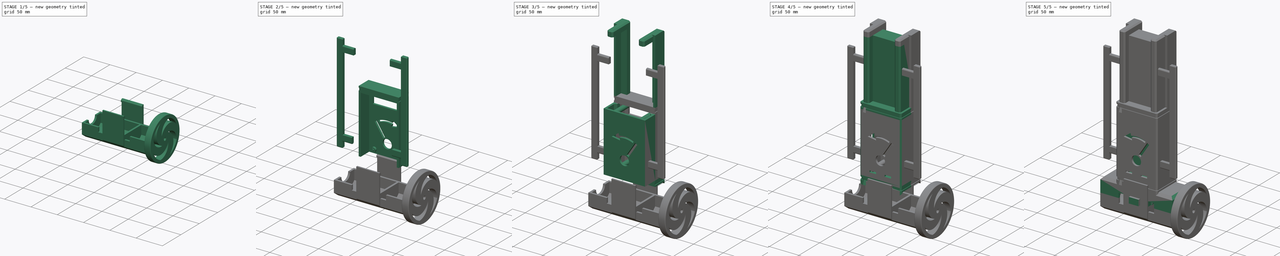
[diagram: build sequence overview — one tinted view per stage of 5, left to right]
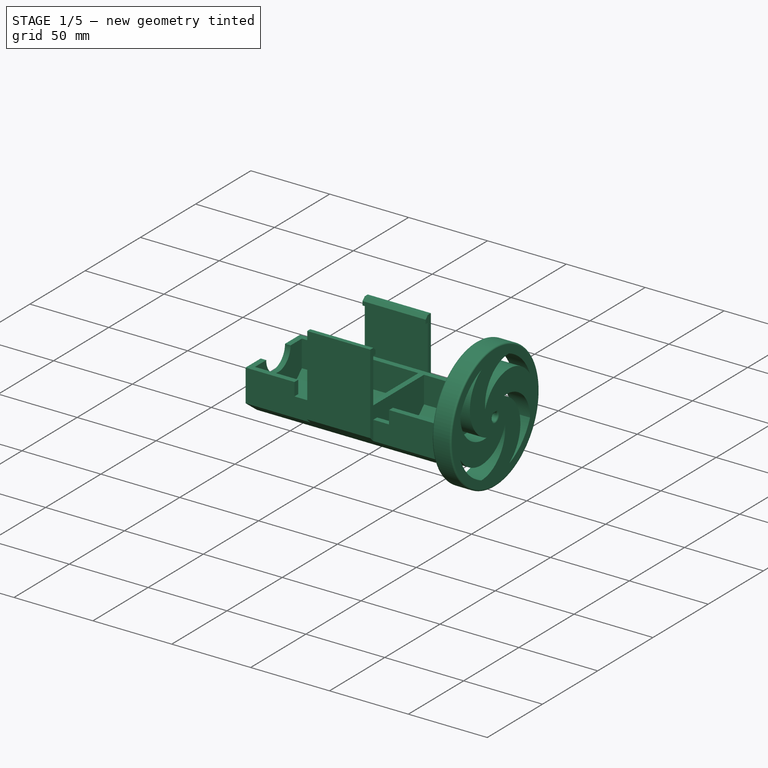
[diagram: stage 1 of 5 — iso view after this stage's code; geometry added in this stage tinted green]
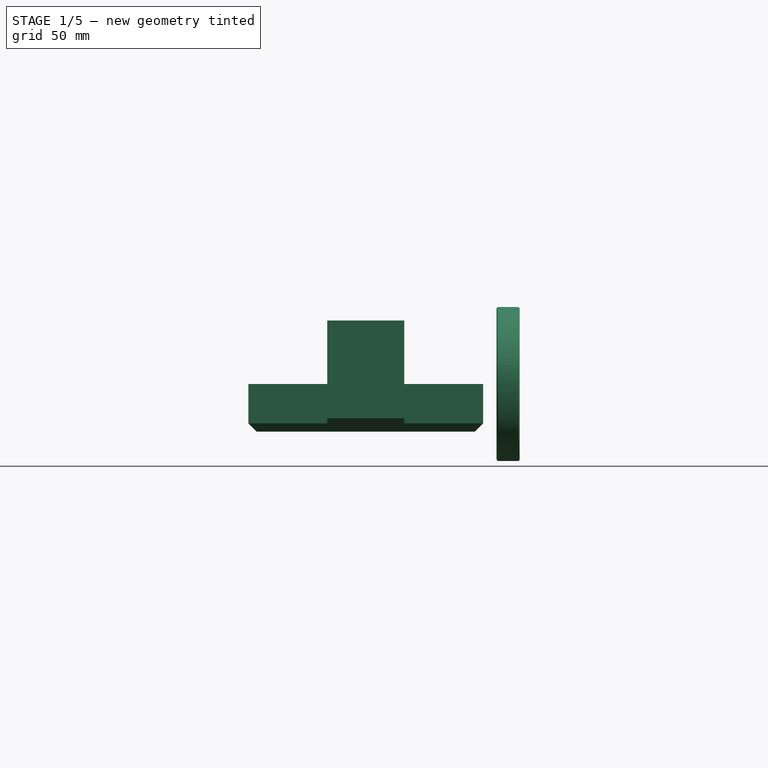
[diagram: stage 1 of 5 — front view after this stage's code; geometry added in this stage tinted green]
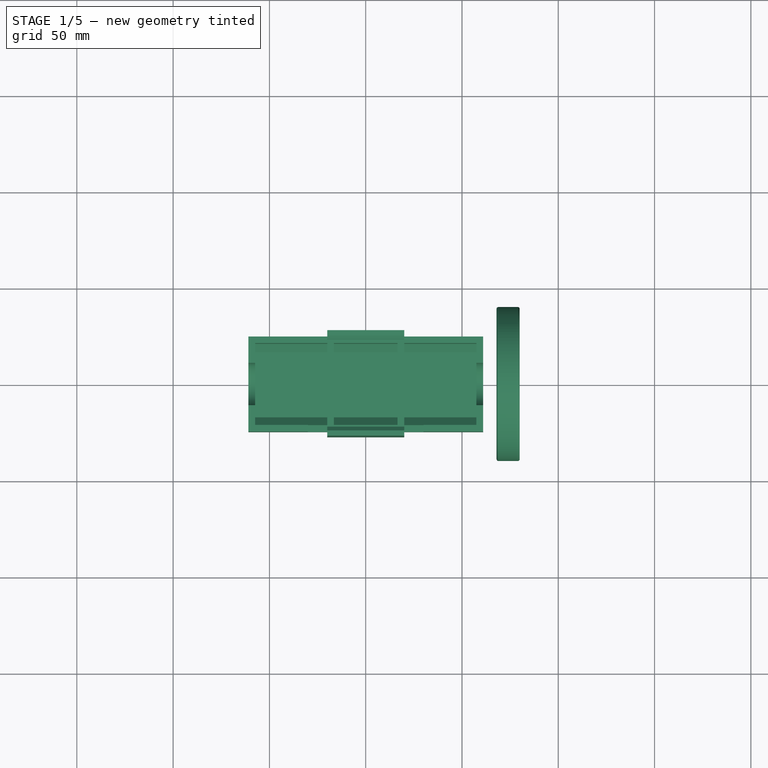
[diagram: stage 1 of 5 — top view after this stage's code; geometry added in this stage tinted green]
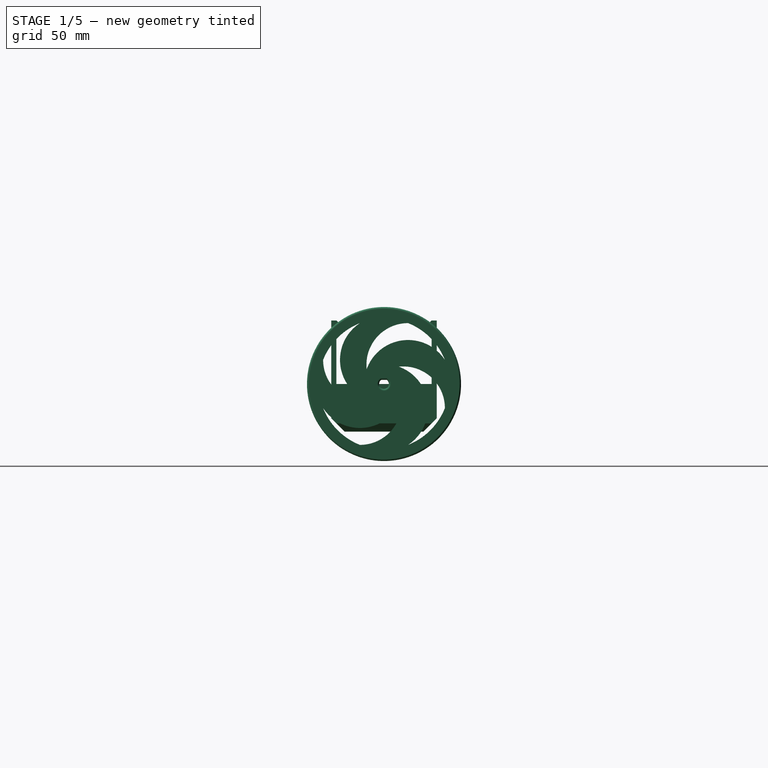
[diagram: stage 1 of 5 — right view after this stage's code; geometry added in this stage tinted green]
FCSTD DOCUMENT  (FreeCAD 0.18R4 (GitTag))
Label: robotBody
License: All rights reserved
LicenseURL: http://en.wikipedia.org/wiki/All_rights_reserved
objects: Sketcher::SketchObject×50, PartDesign::Pad×41, PartDesign::Body×22, PartDesign::Chamfer×15, PartDesign::Boolean×11, App::Part×9, PartDesign::Pocket×9, PartDesign::Fillet×3, Spreadsheet::Sheet×1, PartDesign::Mirrored×1
note: 202 computed .brp shape members not serialized (recipe doc carries the construction recipe); baked Part::Feature solids carry a one-line shape summary decoded from their .brp

FEATURE [PartDesign::Body] Body001  label="Motor001"
  Group = -> [Sketch005,Pad007,Sketch006,Pad006,Sketch007,Pad004,Sketch004,Pad005]
  Origin = -> Origin003
  Placement = pos=(20,0,0) rot=(0,1,0;1.5708rad)
  Tip = -> Pad005
  expr: Placement.Base.x = Dem.stOffset / 2
FEATURE [App::Part] Part001  label="StepperMotor2"
  Group = -> [Body001]
  Origin = -> Origin002
FEATURE [Sketcher::SketchObject] Sketch008
  AttachmentOffset = pos=(0,0,-60.95) rot=(0,0,1;0rad)
  MapMode = 5
  Placement = pos=(-60.95,1.35e-14,-1.35e-14) rot=(0.57735,0.57735,0.57735;2.0944rad)
  Support = -> [YZ_Plane006]
  expr: AttachmentOffset.Base.z = -Dem.stOffset / 2 - Dem.Z - Dem.caseThinkness
  expr: Constraints[17] = Dem.Indent
  expr: Constraints[12] = Dem.X / 2 + Dem.caseThinkness
  expr: Constraints[11] = Dem.Y / 2 + Dem.caseThinkness
  expr: Constraints[10] = Dem.X + 2 * Dem.caseThinkness
  sketch-geometry (6):
    g0: LineSegment StartX=-24.7 StartY=0 StartZ=0 EndX=-24.7 EndY=-20.45 EndZ=0
    g1: LineSegment StartX=-24.7 StartY=-20.45 StartZ=0 EndX=-20.45 EndY=-24.7 EndZ=0
    g2: LineSegment StartX=-20.45 StartY=-24.7 StartZ=0 EndX=20.45 EndY=-24.7 EndZ=0
    g3: LineSegment StartX=20.45 StartY=-24.7 StartZ=0 EndX=24.7 EndY=-20.45 EndZ=0
    g4: LineSegment StartX=24.7 StartY=-20.45 StartZ=0 EndX=24.7 EndY=0 EndZ=0
    g5: LineSegment StartX=-24.7 StartY=0 StartZ=0 EndX=24.7 EndY=0 EndZ=0
  constraints (18):
    c: Coincident(g0,g1)
    c: Coincident(g1,g2)
    c: Coincident(g2,g3)
    c: Coincident(g3,g4)
    c: Coincident(g5,g0)
    c: Coincident(g5,g4)
    c: Vertical(g0)
    c: Vertical(g4)
    c: Horizontal(g5)
    c: Horizontal(g2)
    c: DistanceX(g0,g4) = 49.4
    c: DistanceY(g1,g0) = 24.7
    c: DistanceX(g0,g-1) = 24.7
    c: DistanceY(g-1,g0) = 0
    c: Perpendicular(g3,g1)
    c: Angle(g3,g2) = 2.35619
    c: Equal(g1,g3)
    c: DistanceX(g0,g1) = 4.25
FEATURE [PartDesign::Pad] Pad008
  Length = 121.9
  Length2 = 100
  Placement = pos=(0,0,0) rot=(0.57735,0.57735,0.57735;2.0944rad)
  Profile = -> Sketch008
  Type = 0
  expr: Length = Dem.stOffset + 2 * Dem.Z + 2 * Dem.caseThinkness
FEATURE [PartDesign::Boolean] Boolean
  BaseFeature = -> Pad008
  Type = 1
FEATURE [PartDesign::Chamfer] Chamfer
  Base = -> Boolean [Edge18,Edge28]
  BaseFeature = -> Boolean
  Size = 4.25
  expr: Size = Dem.Indent
FEATURE [Sketcher::SketchObject] Sketch014
  AttachmentOffset = pos=(0,0,-20.45) rot=(0,0,1;0rad)
  MapMode = 5
  Placement = pos=(0,0,-20.45) rot=(0,0,1;0rad)
  Support = -> [XY_Plane011]
  expr: Constraints[9] = Dem.springThickness
  expr: AttachmentOffset.Base.z = -Dem.Y / 2 - Dem.caseThinkness + Dem.Indent
  expr: Constraints[8] = Dem.stOffset
  expr: Constraints[11] = Dem.X / 2 + Dem.caseThinkness
  expr: Constraints[10] = Dem.stOffset / 2
  sketch-geometry (4):
    g0: LineSegment StartX=-20 StartY=-24.7 StartZ=0 EndX=20 EndY=-24.7 EndZ=0
    g1: LineSegment StartX=20 StartY=-24.7 StartZ=0 EndX=20 EndY=-27.4 EndZ=0
    g2: LineSegment StartX=20 StartY=-27.4 StartZ=0 EndX=-20 EndY=-27.4 EndZ=0
    g3: LineSegment StartX=-20 StartY=-27.4 StartZ=0 EndX=-20 EndY=-24.7 EndZ=0
  constraints (12):
    c: Coincident(g0,g1)
    c: Coincident(g1,g2)
    c: Coincident(g2,g3)
    c: Coincident(g3,g0)
    c: Horizontal(g0)
    c: Horizontal(g2)
    c: Vertical(g1)
    c: Vertical(g3)
    c: DistanceX(g0,g0) = 40
    c: DistanceY(g1,g0) = 2.7
    c: DistanceX(g0,g-1) = 20
    c: DistanceY(g0,g-1) = 24.7
FEATURE [Sketcher::SketchObject] Sketch015
  MapMode = 5
  Placement = pos=(0,0,3.6e-15) rot=(0,0,1;0rad)
  Support = -> [Chamfer]
  expr: Constraints[11] = Dem.X / 2
  expr: Constraints[10] = Dem.stOffset / 2 - Dem.caseThinkness
  expr: Constraints[9] = Dem.X
  expr: Constraints[8] = Dem.stOffset - 2 * Dem.caseThinkness
  sketch-geometry (4):
    g0: LineSegment StartX=-16.5 StartY=21.2 StartZ=0 EndX=16.5 EndY=21.2 EndZ=0
    g1: LineSegment StartX=16.5 StartY=21.2 StartZ=0 EndX=16.5 EndY=-21.2 EndZ=0
    g2: LineSegment StartX=16.5 StartY=-21.2 StartZ=0 EndX=-16.5 EndY=-21.2 EndZ=0
    g3: LineSegment StartX=-16.5 StartY=-21.2 StartZ=0 EndX=-16.5 EndY=21.2 EndZ=0
  constraints (12):
    c: Coincident(g0,g1)
    c: Coincident(g1,g2)
    c: Coincident(g2,g3)
    c: Coincident(g3,g0)
    c: Horizontal(g0)
    c: Horizontal(g2)
    c: Vertical(g1)
    c: Vertical(g3)
    c: DistanceX(g0,g0) = 33
    c: DistanceY(g1,g0) = 42.4
    c: DistanceX(g0,g-1) = 16.5
    c: DistanceY(g1,g-1) = 21.2
FEATURE [PartDesign::Pocket] Pocket
  BaseFeature = -> Chamfer
  Length = 21.2
  Length2 = 100
  Profile = -> Sketch015
  Type = 0
  expr: Length = Dem.X / 2
FEATURE [PartDesign::Chamfer] Chamfer004
  Base = -> Pocket [Edge100,Edge97]
  BaseFeature = -> Pocket
  Size = 4.25
  expr: Size = Dem.Indent
FEATURE [PartDesign::Pad] Pad012
  Length = 53.4
  Length2 = 100
  Profile = -> Sketch014
  Type = 0
  expr: Length = -Dem.Indent + Dem.housingY + Dem.spacing / 2 + Dem.grooveWidth / 2 + 1mm
FEATURE [Sketcher::SketchObject] Sketch016
  AttachmentOffset = pos=(0,0,-20.45) rot=(0,0,1;0rad)
  MapMode = 5
  Placement = pos=(0,0,-20.45) rot=(0,0,1;0rad)
  Support = -> [XY_Plane012]
  expr: Constraints[11] = Dem.housingX / 2
  expr: Constraints[10] = Dem.springThickness
  expr: Constraints[9] = Dem.stOffset / 2
  expr: AttachmentOffset.Base.z = -Dem.Y / 2 - Dem.caseThinkness + Dem.Indent
  expr: Constraints[8] = Dem.stOffset
  sketch-geometry (4):
    g0: LineSegment StartX=-20 StartY=27.4 StartZ=0 EndX=20 EndY=27.4 EndZ=0
    g1: LineSegment StartX=20 StartY=27.4 StartZ=0 EndX=20 EndY=24.7 EndZ=0
    g2: LineSegment StartX=20 StartY=24.7 StartZ=0 EndX=-20 EndY=24.7 EndZ=0
    g3: LineSegment StartX=-20 StartY=24.7 StartZ=0 EndX=-20 EndY=27.4 EndZ=0
  constraints (12):
    c: Coincident(g0,g1)
    c: Coincident(g1,g2)
    c: Coincident(g2,g3)
    c: Coincident(g3,g0)
    c: Horizontal(g0)
    c: Horizontal(g2)
    c: Vertical(g1)
    c: Vertical(g3)
    c: DistanceX(g0,g0) = 40
    c: DistanceX(g0,g-1) = 20
    c: DistanceY(g1,g0) = 2.7
    c: DistanceY(g-1,g2) = 24.7
FEATURE [PartDesign::Pad] Pad013
  Length = 53.4
  Length2 = 100
  Profile = -> Sketch016
  Type = 0
  expr: Length = -Dem.Indent + Dem.housingY + Dem.spacing / 2 + Dem.grooveWidth / 2 + 1mm
FEATURE [PartDesign::Chamfer] Chamfer005
  Base = -> Pad012 [Edge9]
  BaseFeature = -> Pad012
  Size = 2.69
  expr: Size = Dem.springThickness - 0.01mm
FEATURE [Sketcher::SketchObject] Sketch017
  MapMode = 5
  Placement = pos=(0,-24.7,0) rot=(0,0.707107,0.707107;3.14159rad)
  Support = -> [Chamfer005]
  expr: Constraints[11] = Dem.housingY / 2 + Dem.spacing / 2 + Dem.grooveWidth / 2 + 1mm
  expr: Constraints[10] = Dem.stOffset / 2
  expr: Constraints[9] = Dem.grooveWidth
  expr: Constraints[8] = Dem.stOffset
  sketch-geometry (4):
    g0: LineSegment StartX=-20 StartY=32.95 StartZ=0 EndX=20 EndY=32.95 EndZ=0
    g1: LineSegment StartX=20 StartY=32.95 StartZ=0 EndX=20 EndY=28.45 EndZ=0
    g2: LineSegment StartX=20 StartY=28.45 StartZ=0 EndX=-20 EndY=28.45 EndZ=0
    g3: LineSegment StartX=-20 StartY=28.45 StartZ=0 EndX=-20 EndY=32.95 EndZ=0
  constraints (12):
    c: Coincident(g0,g1)
    c: Coincident(g1,g2)
    c: Coincident(g2,g3)
    c: Coincident(g3,g0)
    c: Horizontal(g0)
    c: Horizontal(g2)
    c: Vertical(g1)
    c: Vertical(g3)
    c: DistanceX(g2,g1) = 40
    c: DistanceY(g1,g0) = 4.5
    c: DistanceX(g2,g-1) = 20
    c: DistanceY(g-1,g0) = 32.95
FEATURE [PartDesign::Pad] Pad014
  BaseFeature = -> Chamfer005
  Length = 2
  Length2 = 100
  Profile = -> Sketch017
  Type = 0
  expr: Length = Dem.grooveDepth
FEATURE [PartDesign::Chamfer] Chamfer006
  Base = -> Pad014 [Edge23]
  BaseFeature = -> Pad014
  Size = 1.99
  expr: Size = Dem.grooveDepth - 0.01mm
FEATURE [PartDesign::Body] Body006
  Group = -> [Sketch014,Pad012,Chamfer005,Sketch017,Pad014,Chamfer006]
  Origin = -> Origin011
  Tip = -> Chamfer006
FEATURE [PartDesign::Chamfer] Chamfer007
  Base = -> Pad013 [Edge3]
  BaseFeature = -> Pad013
  Size = 2.69
  expr: Size = Dem.springThickness - 0.01mm
FEATURE [Sketcher::SketchObject] Sketch018
  MapMode = 5
  Placement = pos=(0,24.7,0) rot=(1,0,0;1.5708rad)
  Support = -> [Chamfer007]
  expr: Constraints[11] = Dem.housingY / 2 + Dem.spacing / 2 + Dem.grooveWidth / 2 + 1mm
  expr: Constraints[10] = Dem.stOffset / 2
  expr: Constraints[9] = Dem.stOffset
  expr: Constraints[8] = Dem.grooveWidth
  sketch-geometry (4):
    g0: LineSegment StartX=-20 StartY=32.95 StartZ=0 EndX=20 EndY=32.95 EndZ=0
    g1: LineSegment StartX=20 StartY=32.95 StartZ=0 EndX=20 EndY=28.45 EndZ=0
    g2: LineSegment StartX=20 StartY=28.45 StartZ=0 EndX=-20 EndY=28.45 EndZ=0
    g3: LineSegment StartX=-20 StartY=28.45 StartZ=0 EndX=-20 EndY=32.95 EndZ=0
  constraints (12):
    c: Coincident(g0,g1)
    c: Coincident(g1,g2)
    c: Coincident(g2,g3)
    c: Coincident(g3,g0)
    c: Horizontal(g0)
    c: Horizontal(g2)
    c: Vertical(g1)
    c: Vertical(g3)
    c: DistanceY(g1,g0) = 4.5
    c: DistanceX(g0,g0) = 40
    c: DistanceX(g2,g-1) = 20
    c: DistanceY(g-1,g0) = 32.95
FEATURE [PartDesign::Pad] Pad015
  BaseFeature = -> Chamfer007
  Length = 2
  Length2 = 100
  Profile = -> Sketch018
  Type = 0
  expr: Length = Dem.grooveDepth
FEATURE [PartDesign::Chamfer] Chamfer008
  Base = -> Pad015 [Edge23]
  BaseFeature = -> Pad015
  Size = 1.99
  expr: Size = Dem.grooveDepth - 0.01mm
FEATURE [PartDesign::Body] Body002
  Group = -> [Sketch008,Pad008,Boolean,Chamfer,Sketch015,Pocket,Chamfer004,Boolean012]
  Origin = -> Origin006
  Tip = -> Boolean012
FEATURE [App::Part] Part003  label="StepperCaseBottom"
  Group = -> [Body002]
  Origin = -> Origin005
FEATURE [Sketcher::SketchObject] Sketch051
  AttachmentOffset = pos=(0,0,67.95) rot=(0,0,1;0rad)
  MapMode = 5
  Placement = pos=(67.95,-1.51e-14,1.51e-14) rot=(0.57735,0.57735,0.57735;2.0944rad)
  Support = -> [YZ_Plane032]
  expr: AttachmentOffset.Base.z = Dem.stOffset / 2 + Dem.Z + Dem.caseThinkness + 7mm
  expr: Constraints[3] = Dem.Axle / 2
  expr: Constraints[1] = Dem.wheelRad
  sketch-geometry (3):
    g0: Circle CenterX=0 CenterY=0 CenterZ=0 NormalX=0 NormalY=0 NormalZ=1 AngleXU=0 Radius=40
    g1: ArcOfCircle CenterX=0 CenterY=0 CenterZ=0 NormalX=0 NormalY=0 NormalZ=1 AngleXU=0 Radius=2.545 StartAngle=2.15351 EndAngle=7.27126
    g2: LineSegment StartX=-1.4005 StartY=2.125 StartZ=0 EndX=1.4005 EndY=2.125 EndZ=0
  constraints (8):
    c: Coincident(g0,g-1)
    c: Radius(g0) = 40
    c: Coincident(g1,g0)
    c: Radius(g1) = 2.545
    c: DistanceY(g1,g1) = 0
    c: DistanceY(g0,g1) = 2.125
    c: Coincident(g2,g1)
    c: Coincident(g2,g1)
FEATURE [PartDesign::Pad] Pad040
  Length = 12
  Length2 = 100
  Placement = pos=(0,0,0) rot=(0.57735,0.57735,0.57735;2.0944rad)
  Profile = -> Sketch051
  Type = 0
  expr: Length = Dem.wheelThickness
FEATURE [Sketcher::SketchObject] Sketch052
  MapMode = 5
  Placement = pos=(79.95,-2.88e-14,1.68e-14) rot=(0.57735,0.57735,0.57735;2.0944rad)
  Support = -> [Pad040]
  sketch-geometry (12):
    g0: ArcOfCircle CenterX=0 CenterY=0 CenterZ=0 NormalX=0 NormalY=0 NormalZ=1 AngleXU=0 Radius=34 StartAngle=1.94727 EndAngle=2.76512
    g1: ArcOfCircle CenterX=0 CenterY=0 CenterZ=0 NormalX=0 NormalY=0 NormalZ=1 AngleXU=0 Radius=34 StartAngle=0.376478 EndAngle=1.19432
    g2: ArcOfCircle CenterX=0 CenterY=0 CenterZ=0 NormalX=0 NormalY=0 NormalZ=1 AngleXU=0 Radius=34 StartAngle=5.08887 EndAngle=5.90671
    g3: ArcOfCircle CenterX=0 CenterY=0 CenterZ=0 NormalX=0 NormalY=0 NormalZ=1 AngleXU=0 Radius=34 StartAngle=3.51807 EndAngle=4.33591
    g4: ArcOfCircle CenterX=-10 CenterY=12.5 CenterZ=0 NormalX=0 NormalY=0 NormalZ=1 AngleXU=0 Radius=21.6188 StartAngle=3.14159 EndAngle=4.81804
    g5: ArcOfCircle CenterX=0 CenterY=12.5 CenterZ=0 NormalX=0 NormalY=0 NormalZ=1 AngleXU=0 Radius=22.8425 StartAngle=2.14984 EndAngle=4.36762
    g6: ArcOfCircle CenterX=-12.5 CenterY=-10 CenterZ=0 NormalX=0 NormalY=0 NormalZ=1 AngleXU=0 Radius=21.6188 StartAngle=4.71239 EndAngle=6.38883
    g7: ArcOfCircle CenterX=-12.5 CenterY=0 CenterZ=0 NormalX=0 NormalY=0 NormalZ=1 AngleXU=0 Radius=22.8425 StartAngle=3.72064 EndAngle=5.93842
    g8: ArcOfCircle CenterX=10 CenterY=-12.5 CenterZ=0 NormalX=0 NormalY=0 NormalZ=1 AngleXU=0 Radius=21.6188 StartAngle=3e-16 EndAngle=1.67644
    g9: ArcOfCircle CenterX=0 CenterY=-12.5 CenterZ=0 NormalX=0 NormalY=0 NormalZ=1 AngleXU=0 Radius=22.8425 StartAngle=5.29144 EndAngle=7.50921
    g10: ArcOfCircle CenterX=12.5 CenterY=10 CenterZ=0 NormalX=0 NormalY=0 NormalZ=1 AngleXU=0 Radius=21.6188 StartAngle=1.5708 EndAngle=3.24724
    g11: ArcOfCircle CenterX=12.5 CenterY=0 CenterZ=0 NormalX=0 NormalY=0 NormalZ=1 AngleXU=0 Radius=22.8425 StartAngle=0.579046 EndAngle=2.79682
  constraints (44):
    c: Coincident(g0,g1)
    c: Coincident(g3,g0)
    c: Coincident(g2,g0)
    c: Equal(g0,g1)
    c: Equal(g0,g3)
    c: Equal(g1,g2)
    c: DistanceX(g0,g3) = 0
    c: DistanceY(g1,g0) = 0
    c: DistanceX(g2,g1) = 0
    c: DistanceY(g2,g3) = 0
    c: DistanceX(g0,g3) = 0
    c: DistanceY(g0,g1) = 0
    c: DistanceY(g3,g0) = 25
    c: DistanceX(g0,g1) = 25
    c: Coincident(g0,g-1)
    c: Radius(g1) = 34
    c: Coincident(g5,g0)
    c: Coincident(g4,g0)
    c: Coincident(g4,g5)
    c: DistanceY(g0,g4) = 0
    c: DistanceX(g4,g0) = 10
    c: DistanceX(g5,g0) = 0
    c: DistanceY(g5,g0) = 0
    c: Coincident(g7,g3)
    c: Coincident(g6,g3)
    c: Coincident(g7,g6)
    c: DistanceX(g3,g6) = 0
    c: DistanceY(g6,g0) = 10
    c: DistanceX(g6,g7) = 0
    c: DistanceY(g0,g7) = 0
    c: Coincident(g9,g2)
    c: Coincident(g8,g2)
    c: Coincident(g8,g9)
    c: DistanceY(g8,g2) = 0
    c: DistanceX(g0,g8) = 10
    c: DistanceY(g9,g8) = 0
    c: DistanceX(g9,g0) = 0
    c: Coincident(g11,g1)
    c: Coincident(g10,g1)
    c: Coincident(g10,g11)
    c: DistanceY(g0,g10) = 10
    c: DistanceX(g10,g1) = 0
    c: DistanceX(g11,g10) = 0
    c: DistanceY(g11,g0) = 0
FEATURE [PartDesign::Pocket] Pocket008
  BaseFeature = -> Pad040
  Length = 12
  Length2 = 100
  Placement = pos=(0,0,0) rot=(0.57735,0.57735,0.57735;2.0944rad)
  Profile = -> Sketch052
  Type = 0
  expr: Length = Dem.wheelThickness
FEATURE [PartDesign::Fillet] Fillet002
  Base = -> Pocket008 [Edge10,Edge11,Edge2,Edge3,Edge30,Edge31]
  BaseFeature = -> Pocket008
  Placement = pos=(0,0,0) rot=(0.57735,0.57735,0.57735;2.0944rad)
  Radius = 1
FEATURE [PartDesign::Body] Body023
  Group = -> [Sketch051,Pad040,Sketch052,Pocket008,Fillet002]
  Origin = -> Origin032
  Tip = -> Fillet002
FEATURE [App::Part] Part008  label="Wheel"
  Group = -> [Body023]
  Origin = -> Origin030
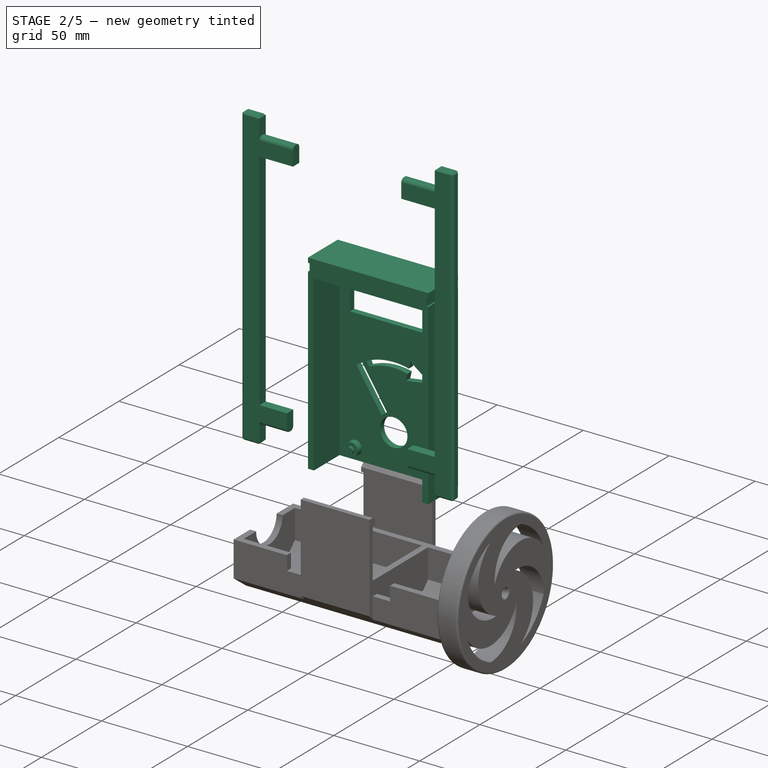
[diagram: stage 2 of 5 — iso view after this stage's code; geometry added in this stage tinted green]
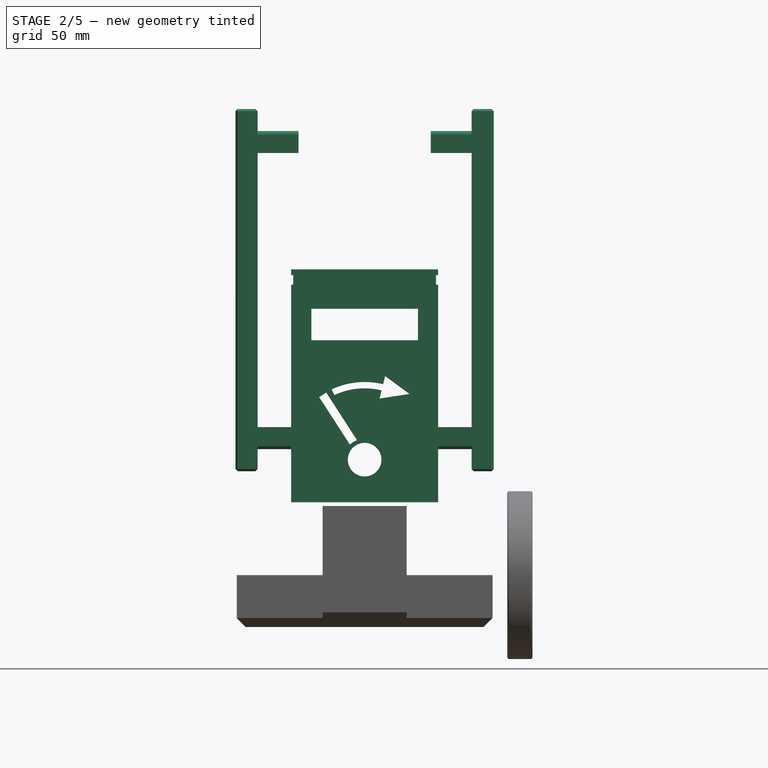
[diagram: stage 2 of 5 — front view after this stage's code; geometry added in this stage tinted green]
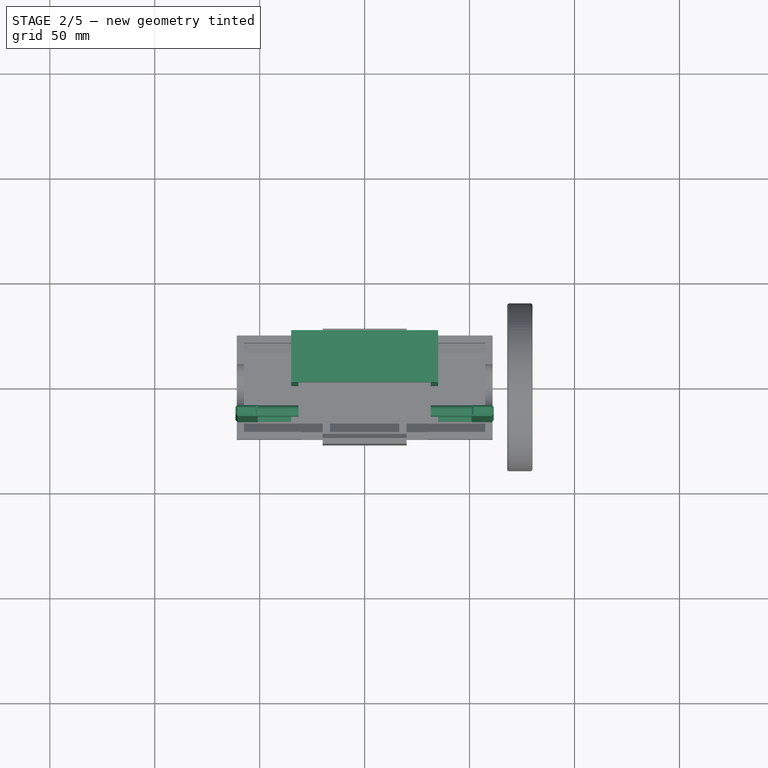
[diagram: stage 2 of 5 — top view after this stage's code; geometry added in this stage tinted green]
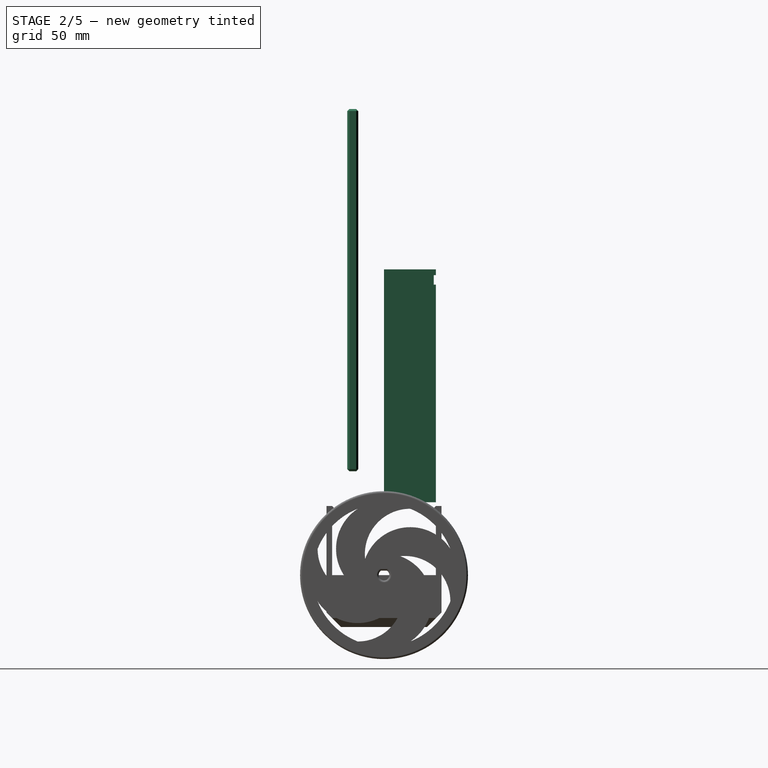
[diagram: stage 2 of 5 — right view after this stage's code; geometry added in this stage tinted green]
FEATURE [PartDesign::Body] Body010
  Group = -> [Sketch021,Pad018,Sketch022,Pad019,Sketch023,Pad020]
  Origin = -> Origin017
  Placement = pos=(0,17.7,0) rot=(0,0,1;0rad)
  Tip = -> Pad020
  expr: Placement.Base.y = Dem.housingX / 2 - Dem.caseThinkness - Dem.boardPadding
FEATURE [App::Part] Part006  label="Board"
  Group = -> [Body010]
  Origin = -> Origin016
FEATURE [Sketcher::SketchObject] Sketch024
  AttachmentOffset = pos=(0,0,34.7) rot=(0,0,1;0rad)
  MapMode = 5
  Placement = pos=(0,0,34.7) rot=(0,0,1;0rad)
  Support = -> [XY_Plane018]
  expr: Constraints[22] = Dem.caseWidth / 2
  expr: Constraints[21] = Dem.caseWidth
  expr: Constraints[20] = Dem.housingX / 2
  expr: Constraints[23] = Dem.housingX / 2
  expr: Constraints[19] = Dem.caseThinkness
  expr: Constraints[18] = Dem.caseThinkness
  expr: AttachmentOffset.Base.z = Dem.boardPos - Dem.boardY / 2 - Dem.caseThinkness
  sketch-geometry (8):
    g0: LineSegment StartX=-35 StartY=0 StartZ=0 EndX=-35 EndY=24.7 EndZ=0
    g1: LineSegment StartX=-35 StartY=24.7 StartZ=0 EndX=35 EndY=24.7 EndZ=0
    g2: LineSegment StartX=35 StartY=24.7 StartZ=0 EndX=35 EndY=0 EndZ=0
    g3: LineSegment StartX=35 StartY=0 StartZ=0 EndX=31.5 EndY=0 EndZ=0
    g4: LineSegment StartX=31.5 StartY=0 StartZ=0 EndX=31.5 EndY=21.2 EndZ=0
    g5: LineSegment StartX=31.5 StartY=21.2 StartZ=0 EndX=-31.5 EndY=21.2 EndZ=0
    g6: LineSegment StartX=-31.5 StartY=21.2 StartZ=0 EndX=-31.5 EndY=0 EndZ=0
    g7: LineSegment StartX=-31.5 StartY=0 StartZ=0 EndX=-35 EndY=0 EndZ=0
  constraints (24):
    c: Coincident(g0,g1)
    c: Coincident(g1,g2)
    c: Coincident(g2,g3)
    c: Coincident(g3,g4)
    c: Coincident(g4,g5)
    c: Coincident(g5,g6)
    c: Coincident(g6,g7)
    c: Coincident(g7,g0)
    c: Horizontal(g1)
    c: Horizontal(g5)
    c: Horizontal(g7)
    c: Vertical(g0)
    c: Vertical(g6)
    c: Vertical(g4)
    c: Vertical(g2)
    c: Equal(g6,g4)
    c: Equal(g2,g0)
    c: Equal(g7,g3)
    c: DistanceX(g0,g6) = 3.5
    c: DistanceY(g4,g1) = 3.5
    c: DistanceY(g0,g0) = 24.7
    c: DistanceX(g0,g1) = 70
    c: DistanceX(g0,g-1) = 35
    c: DistanceY(g-1,g0) = 24.7
FEATURE [PartDesign::Pad] Pad021
  Length = 100.98
  Length2 = 100
  Profile = -> Sketch024
  Type = 0
  expr: Length = Dem.caseThinkness * 2 + Dem.boardY
FEATURE [Sketcher::SketchObject] Sketch025
  MapMode = 5
  Placement = pos=(0,21.2,0) rot=(1,0,0;1.5708rad)
  Support = -> [Pad021]
  expr: Constraints[11] = Dem.boardPos - Dem.boardY / 2 + Dem.holeOffset
  expr: Constraints[10] = Dem.boardX / 2 - Dem.holeOffset
  expr: Constraints[9] = Dem.holeWidth
  expr: Constraints[8] = Dem.boardY - 2 * Dem.holeOffset
  expr: Constraints[7] = Dem.boardX - Dem.holeOffset * 2
  sketch-geometry (4):
    g0: Circle CenterX=-22.225 CenterY=129.005 CenterZ=0 NormalX=0 NormalY=0 NormalZ=1 AngleXU=0 Radius=3.8
    g1: Circle CenterX=22.225 CenterY=129.005 CenterZ=0 NormalX=0 NormalY=0 NormalZ=1 AngleXU=0 Radius=3.8
    g2: Circle CenterX=-22.225 CenterY=41.375 CenterZ=0 NormalX=0 NormalY=0 NormalZ=1 AngleXU=0 Radius=3.8
    g3: Circle CenterX=22.225 CenterY=41.375 CenterZ=0 NormalX=0 NormalY=0 NormalZ=1 AngleXU=0 Radius=3.8
  constraints (12):
    c: Equal(g0,g1)
    c: Equal(g1,g2)
    c: Equal(g2,g3)
    c: DistanceX(g2,g0) = 0
    c: DistanceX(g1,g3) = 0
    c: DistanceY(g1,g0) = 0
    c: DistanceY(g3,g2) = 0
    c: DistanceX(g0,g1) = 44.45
    c: DistanceY(g3,g1) = 87.63
    c: Radius(g1) = 3.8
    c: DistanceX(g2,g-1) = 22.225
    c: DistanceY(g-1,g3) = 41.375
FEATURE [PartDesign::Pad] Pad022
  BaseFeature = -> Pad021
  Length = 3.5
  Length2 = 100
  Profile = -> Sketch025
  Type = 0
  expr: Length = Dem.boardPadding
FEATURE [Sketcher::SketchObject] Sketch026
  AttachmentOffset = pos=(0,0,-17.7) rot=(0,0,1;0rad)
  MapMode = 5
  Placement = pos=(0,17.7,3.9e-15) rot=(1,0,0;1.5708rad)
  Support = -> [XZ_Plane018]
  expr: Constraints[11] = Dem.boardPos - Dem.boardY / 2 + Dem.holeOffset
  expr: Constraints[10] = Dem.boardX / 2 - Dem.holeOffset
  expr: Constraints[9] = Dem.holeWidth / 2 - 0.1mm
  expr: AttachmentOffset.Base.z = -Dem.housingX / 2 + Dem.caseThinkness + Dem.boardPadding
  expr: Constraints[8] = Dem.boardY - 2 * Dem.holeOffset
  expr: Constraints[7] = Dem.boardX - 2 * Dem.holeOffset
  sketch-geometry (4):
    g0: Circle CenterX=-22.225 CenterY=129.005 CenterZ=0 NormalX=0 NormalY=0 NormalZ=1 AngleXU=0 Radius=1.8
    g1: Circle CenterX=22.225 CenterY=129.005 CenterZ=0 NormalX=0 NormalY=0 NormalZ=1 AngleXU=0 Radius=1.8
    g2: Circle CenterX=-22.225 CenterY=41.375 CenterZ=0 NormalX=0 NormalY=0 NormalZ=1 AngleXU=0 Radius=1.8
    g3: Circle CenterX=22.225 CenterY=41.375 CenterZ=0 NormalX=0 NormalY=0 NormalZ=1 AngleXU=0 Radius=1.8
  constraints (12):
    c: Equal(g2,g3)
    c: Equal(g3,g1)
    c: Equal(g1,g0)
    c: DistanceX(g0,g2) = 0
    c: DistanceX(g3,g1) = 0
    c: DistanceY(g1,g0) = 0
    c: DistanceY(g3,g2) = 0
    c: DistanceX(g0,g1) = 44.45
    c: DistanceY(g3,g1) = 87.63
    c: Radius(g1) = 1.8
    c: DistanceX(g2,g-1) = 22.225
    c: DistanceY(g-1,g2) = 41.375
FEATURE [PartDesign::Pad] Pad023
  BaseFeature = -> Pad022
  Length = 1.5
  Length2 = 100
  Profile = -> Sketch026
  Type = 0
  expr: Length = Dem.boardZ
FEATURE [Sketcher::SketchObject] Sketch028
  AttachmentOffset = pos=(0,0,-24.7) rot=(0,0,1;0rad)
  MapMode = 5
  Placement = pos=(0,24.7,5.5e-15) rot=(1,0,0;1.5708rad)
  Support = -> [XZ_Plane019]
  expr: Constraints[11] = Dem.boardPos + Dem.boardY / 2 - Dem.cutIndent
  expr: Constraints[10] = Dem.boardX / 2
  expr: Constraints[9] = Dem.cutY
  expr: AttachmentOffset.Base.z = -Dem.housingX / 2
  expr: Constraints[8] = Dem.boardX
  sketch-geometry (4):
    g0: LineSegment StartX=-25.4 StartY=126.88 StartZ=0 EndX=25.4 EndY=126.88 EndZ=0
    g1: LineSegment StartX=25.4 StartY=126.88 StartZ=0 EndX=25.4 EndY=111.88 EndZ=0
    g2: LineSegment StartX=25.4 StartY=111.88 StartZ=0 EndX=-25.4 EndY=111.88 EndZ=0
    g3: LineSegment StartX=-25.4 StartY=111.88 StartZ=0 EndX=-25.4 EndY=126.88 EndZ=0
  constraints (12):
    c: Coincident(g0,g1)
    c: Coincident(g1,g2)
    c: Coincident(g2,g3)
    c: Coincident(g3,g0)
    c: Horizontal(g0)
    c: Horizontal(g2)
    c: Vertical(g1)
    c: Vertical(g3)
    c: DistanceX(g2,g1) = 50.8
    c: DistanceY(g1,g0) = 15
    c: DistanceX(g2,g-1) = 25.4
    c: DistanceY(g-1,g0) = 126.88
FEATURE [PartDesign::Pad] Pad024
  Length = 10
  Length2 = 100
  Placement = pos=(0,0,0) rot=(1,0,0;1.5708rad)
  Profile = -> Sketch028
  Type = 0
FEATURE [PartDesign::Body] Body012
  Group = -> [Sketch028,Pad024]
  Origin = -> Origin019
  Tip = -> Pad024
FEATURE [PartDesign::Boolean] Boolean005
  BaseFeature = -> Pad023
  Group = -> [Body012]
  Type = 1
FEATURE [Sketcher::SketchObject] Sketch034
  AttachmentOffset = pos=(0,0,135.68) rot=(0,0,1;0rad)
  MapMode = 5
  Placement = pos=(0,0,135.68) rot=(0,0,1;0rad)
  Support = -> [XY_Plane023]
  expr: Constraints[10] = Dem.caseWidth / 2
  expr: Constraints[9] = Dem.caseWidth
  expr: AttachmentOffset.Base.z = Dem.boardPos + Dem.boardY / 2 + Dem.caseThinkness
  expr: Constraints[8] = Dem.housingX / 2
  sketch-geometry (4):
    g0: LineSegment StartX=-35 StartY=24.7 StartZ=0 EndX=35 EndY=24.7 EndZ=0
    g1: LineSegment StartX=35 StartY=24.7 StartZ=0 EndX=35 EndY=0 EndZ=0
    g2: LineSegment StartX=35 StartY=0 StartZ=0 EndX=-35 EndY=0 EndZ=0
    g3: LineSegment StartX=-35 StartY=0 StartZ=0 EndX=-35 EndY=24.7 EndZ=0
  constraints (12):
    c: Coincident(g0,g1)
    c: Coincident(g1,g2)
    c: Coincident(g2,g3)
    c: Coincident(g3,g0)
    c: Horizontal(g0)
    c: Horizontal(g2)
    c: Vertical(g1)
    c: Vertical(g3)
    c: DistanceY(g1,g0) = 24.7
    c: DistanceX(g0,g0) = 70
    c: DistanceX(g2,g-1) = 35
    c: DistanceY(g-1,g2) = 0
FEATURE [PartDesign::Pad] Pad030
  Length = 10
  Length2 = 100
  Profile = -> Sketch034
  Type = 0
  expr: Length = Dem.spacing
FEATURE [Sketcher::SketchObject] Sketch035
  AttachmentOffset = pos=(0,0,138.43) rot=(0,0,1;0rad)
  MapMode = 5
  Placement = pos=(0,0,138.43) rot=(0,0,1;0rad)
  Support = -> [XY_Plane024]
  expr: Constraints[21] = Dem.housingX / 2
  expr: Constraints[20] = Dem.caseWidth / 2
  expr: Constraints[19] = Dem.caseWidth
  expr: Constraints[18] = Dem.grooveDepth / 2
  expr: Constraints[17] = Dem.grooveDepth / 2
  expr: AttachmentOffset.Base.z = Dem.boardPos + Dem.boardY / 2 + Dem.caseThinkness + Dem.spacing / 2 - Dem.grooveWidth / 2
  expr: Constraints[16] = Dem.grooveDepth / 2
  sketch-geometry (8):
    g0: LineSegment StartX=-35 StartY=0 StartZ=0 EndX=-35 EndY=24.7 EndZ=0
    g1: LineSegment StartX=-35 StartY=24.7 StartZ=0 EndX=35 EndY=24.7 EndZ=0
    g2: LineSegment StartX=35 StartY=24.7 StartZ=0 EndX=35 EndY=0 EndZ=0
    g3: LineSegment StartX=35 StartY=0 StartZ=0 EndX=34 EndY=0 EndZ=0
    g4: LineSegment StartX=34 StartY=0 StartZ=0 EndX=34 EndY=23.7 EndZ=0
    g5: LineSegment StartX=34 StartY=23.7 StartZ=0 EndX=-34 EndY=23.7 EndZ=0
    g6: LineSegment StartX=-34 StartY=23.7 StartZ=0 EndX=-34 EndY=0 EndZ=0
    g7: LineSegment StartX=-34 StartY=0 StartZ=0 EndX=-35 EndY=0 EndZ=0
  constraints (24):
    c: Coincident(g0,g1)
    c: Coincident(g1,g2)
    c: Coincident(g2,g3)
    c: Coincident(g3,g4)
    c: Coincident(g4,g5)
    c: Coincident(g5,g6)
    c: Coincident(g6,g7)
    c: Coincident(g7,g0)
    c: Horizontal(g1)
    c: Horizontal(g5)
    c: Horizontal(g7)
    c: Horizontal(g3)
    c: Vertical(g0)
    c: Vertical(g6)
    c: Vertical(g4)
    c: Vertical(g2)
    c: DistanceX(g3,g2) = 1
    c: DistanceY(g4,g1) = 1
    c: DistanceX(g0,g6) = 1
    c: DistanceX(g0,g1) = 70
    c: DistanceX(g0,g-1) = 35
    c: DistanceY(g2,g1) = 24.7
    c: Equal(g0,g2)
    c: DistanceY(g-1,g0) = 0
FEATURE [PartDesign::Pad] Pad031
  Length = 4.5
  Length2 = 100
  Profile = -> Sketch035
  Type = 0
  expr: Length = Dem.grooveWidth
FEATURE [PartDesign::Body] Body017
  Group = -> [Sketch035,Pad031]
  Origin = -> Origin024
  Tip = -> Pad031
FEATURE [PartDesign::Boolean] Boolean007
  BaseFeature = -> Pad030
  Group = -> [Body017]
  Type = 1
FEATURE [PartDesign::Body] Body014  label="Zip2"
  Group = -> [Sketch032,Pad028,Boolean006,Sketch041,Pad037]
  Origin = -> Origin021
  Tip = -> Pad037
FEATURE [Sketcher::SketchObject] Sketch042
  MapMode = 5
  Placement = pos=(0,24.7,0) rot=(0,0.707107,0.707107;3.14159rad)
  Support = -> [Boolean005]
  sketch-geometry (12):
    g0: Circle CenterX=0 CenterY=55 CenterZ=0 NormalX=0 NormalY=0 NormalZ=1 AngleXU=0 Radius=8
    g1: LineSegment StartX=3.64114 StartY=64.3135 StartZ=0 EndX=18.3029 EndY=86.9858 EndZ=0
    g2: LineSegment StartX=18.3029 StartY=86.9858 StartZ=0 EndX=21.6618 EndY=84.8137 EndZ=0
    g3: LineSegment StartX=21.6618 StartY=84.8137 StartZ=0 EndX=7 EndY=62.1414 EndZ=0
    g4: ArcOfCircle CenterX=0 CenterY=55 CenterZ=0 NormalX=0 NormalY=0 NormalZ=1 AngleXU=0 Radius=10 StartAngle=0.795399 EndAngle=1.19811
    g5: ArcOfCircle CenterX=0 CenterY=55 CenterZ=0 NormalX=0 NormalY=0 NormalZ=1 AngleXU=0 Radius=37 StartAngle=1.13222 EndAngle=1.8113
    g6: ArcOfCircle CenterX=0 CenterY=55 CenterZ=0 NormalX=0 NormalY=0 NormalZ=1 AngleXU=0 Radius=34 StartAngle=1.13222 EndAngle=1.8113
    g7: LineSegment StartX=15.712 StartY=88.4982 StartZ=0 EndX=14.4381 EndY=85.7822 EndZ=0
    g8: LineSegment StartX=-8.09863 StartY=88.0214 StartZ=0 EndX=-7.14586 EndY=84.1365 EndZ=0
    g9: LineSegment StartX=-7.14586 StartY=84.1365 StartZ=0 EndX=-21.3519 EndY=86.3154 EndZ=0
    g10: LineSegment StartX=-21.3519 StartY=86.3154 StartZ=0 EndX=-9.76599 EndY=94.8199 EndZ=0
    g11: LineSegment StartX=-9.76599 StartY=94.8199 StartZ=0 EndX=-8.81321 EndY=90.935 EndZ=0
  constraints (36):
    c: Coincident(g1,g2)
    c: Coincident(g2,g3)
    c: Coincident(g4,g1)
    c: Coincident(g4,g3)
    c: Coincident(g8,g9)
    c: Coincident(g9,g10)
    c: Coincident(g10,g11)
    c: Coincident(g11,g5)
    c: Coincident(g8,g6)
    c: Coincident(g7,g6)
    c: Coincident(g7,g5)
    c: Radius(g0) = 8
    c: Radius(g4) = 10
    c: Coincident(g4,g0)
    c: Coincident(g5,g0)
    c: Coincident(g6,g0)
    c: Parallel(g1,g3)
    c: Perpendicular(g1,g2)
    c: Distance(g2,g3) = 27
    c: Equal(g1,g3)
    c: Distance(g1,g2) = 4
    c: Parallel(g11,g8)
    c: Angle(g9,g10) = 0.785398
    c: Equal(g11,g8)
    c: Distance(g10,g5) = 4
    c: Equal(g10,g9)
    c: Radius(g5) = 37
    c: Radius(g6) = 34
    c: Distance(g5,g6) = 3
    c: Distance(g5,g6) = 3
    c: DistanceX(g0,g-1) = 0
    c: DistanceY(g-1,g0) = 55
    c: Distance(g10,g8) = 11
    c: Angle(g1,g8) = 0.814545
    c: DistanceX(g-1,g3) = 7
    c: Distance(g5,g1) = 3
FEATURE [PartDesign::Pocket] Pocket002
  BaseFeature = -> Boolean005
  Length = 5
  Length2 = 100
  Profile = -> Sketch042
  Type = 0
FEATURE [Sketcher::SketchObject] Sketch049
  AttachmentOffset = pos=(0,0,12.25) rot=(0,0,1;0rad)
  MapMode = 5
  Placement = pos=(0,-12.25,-2.7e-15) rot=(1,0,0;1.5708rad)
  Support = -> [XZ_Plane028]
  expr: AttachmentOffset.Base.z = Dem.batZ / 2
  expr: Constraints[40] = Dem.caseWidth / 2
  expr: Constraints[39] = Dem.cordWrapWidth
  expr: Constraints[35] = Dem.caseWidth / 2 - Dem.batX / 2
  expr: Constraints[26] = Dem.cordWrapZ * 2
  sketch-geometry (14):
    g0: LineSegment StartX=35 StartY=70.5 StartZ=0 EndX=51 EndY=70.5 EndZ=0
    g1: LineSegment StartX=51 StartY=70.5 StartZ=0 EndX=51 EndY=201.1 EndZ=0
    g2: LineSegment StartX=51 StartY=201.1 StartZ=0 EndX=35 EndY=201.1 EndZ=0
    g3: LineSegment StartX=35 StartY=211.6 StartZ=0 EndX=51 EndY=211.6 EndZ=0
    g4: LineSegment StartX=51 StartY=211.6 StartZ=0 EndX=51 EndY=222.1 EndZ=0
    g5: LineSegment StartX=51 StartY=222.1 StartZ=0 EndX=61.5 EndY=222.1 EndZ=0
    g6: LineSegment StartX=61.5 StartY=222.1 StartZ=0 EndX=61.5 EndY=49.5 EndZ=0
    g7: LineSegment StartX=61.5 StartY=49.5 StartZ=0 EndX=51 EndY=49.5 EndZ=0
    g8: LineSegment StartX=51 StartY=49.5 StartZ=0 EndX=51 EndY=60 EndZ=0
    g9: LineSegment StartX=51 StartY=60 StartZ=0 EndX=35 EndY=60 EndZ=0
    g10: LineSegment StartX=35 StartY=60 StartZ=0 EndX=35 EndY=70.5 EndZ=0
    g11: LineSegment StartX=35 StartY=211.6 StartZ=0 EndX=31.5 EndY=211.6 EndZ=0
    g12: LineSegment StartX=31.5 StartY=211.6 StartZ=0 EndX=31.5 EndY=201.1 EndZ=0
    g13: LineSegment StartX=31.5 StartY=201.1 StartZ=0 EndX=35 EndY=201.1 EndZ=0
  constraints (42):
    c: Coincident(g0,g1)
    c: Coincident(g1,g2)
    c: Coincident(g3,g4)
    c: Coincident(g4,g5)
    c: Coincident(g5,g6)
    c: Coincident(g6,g7)
    c: Coincident(g7,g8)
    c: Coincident(g8,g9)
    c: Coincident(g9,g10)
    c: Coincident(g10,g0)
    c: Vertical(g6)
    c: Vertical(g1)
    c: Vertical(g10)
    c: Vertical(g4)
    c: Vertical(g8)
    c: Horizontal(g3)
    c: Horizontal(g2)
    c: Horizontal(g5)
    c: Horizontal(g7)
    c: Horizontal(g9)
    c: Horizontal(g0)
    c: Equal(g4,g5)
    c: Equal(g8,g7)
    c: Equal(g3,g2)
    c: Equal(g0,g9)
    c: Equal(g0,g2)
    c: DistanceY(g2,g3) = 10.5
    c: DistanceX(g3,g3) = 16
    c: Coincident(g11,g12)
    c: Coincident(g12,g13)
    c: Coincident(g11,g3)
    c: Coincident(g13,g2)
    c: Horizontal(g11)
    c: Horizontal(g13)
    c: Vertical(g12)
    c: DistanceX(g11,g3) = 3.5
    c: Equal(g11,g13)
    c: Equal(g12,g5)
    c: Equal(g10,g12)
    c: DistanceY(g9,g3) = 151.6
    c: DistanceX(g-1,g9) = 35
    c: DistanceY(g-1,g9) = 60
FEATURE [PartDesign::Pad] Pad038
  Length = 5.25
  Length2 = 100
  Placement = pos=(0,0,0) rot=(1,0,0;1.5708rad)
  Profile = -> Sketch049
  Type = 0
  expr: Length = Dem.cordWrapZ
FEATURE [PartDesign::Fillet] Fillet
  Base = -> Pad038 [Edge22,Edge21,Edge42,Edge41,Edge3,Edge4]
  BaseFeature = -> Pad038
  Placement = pos=(0,0,0) rot=(1,0,0;1.5708rad)
  Radius = 2
FEATURE [PartDesign::Chamfer] Chamfer014
  Base = -> Fillet [Edge18,Edge36,Edge47,Edge46,Edge48,Edge35,Edge61,Edge33,Edge44,Edge59]
  BaseFeature = -> Fillet
  Placement = pos=(0,0,0) rot=(1,0,0;1.5708rad)
  Size = 1
FEATURE [PartDesign::Body] Body020
  Group = -> [Sketch049,Pad038,Fillet,Chamfer014]
  Origin = -> Origin028
  Tip = -> Chamfer014
FEATURE [Sketcher::SketchObject] Sketch050
  AttachmentOffset = pos=(0,0,17.5) rot=(0,1,0;3.14159rad)
  MapMode = 5
  Placement = pos=(0,-17.5,-3.9e-15) rot=(0,0.707107,0.707107;3.14159rad)
  Support = -> [XZ_Plane029]
  expr: AttachmentOffset.Base.z = Dem.batZ / 2 + Dem.cordWrapZ
  expr: Constraints[40] = Dem.caseWidth / 2
  expr: Constraints[39] = Dem.cordWrapWidth
  expr: Constraints[35] = Dem.caseWidth / 2 - Dem.batX / 2
  expr: Constraints[26] = Dem.cordWrapZ * 2
  sketch-geometry (14):
    g0: LineSegment StartX=35 StartY=70.5 StartZ=0 EndX=51 EndY=70.5 EndZ=0
    g1: LineSegment StartX=51 StartY=70.5 StartZ=0 EndX=51 EndY=201.1 EndZ=0
    g2: LineSegment StartX=51 StartY=201.1 StartZ=0 EndX=35 EndY=201.1 EndZ=0
    g3: LineSegment StartX=35 StartY=211.6 StartZ=0 EndX=51 EndY=211.6 EndZ=0
    g4: LineSegment StartX=51 StartY=211.6 StartZ=0 EndX=51 EndY=222.1 EndZ=0
    g5: LineSegment StartX=51 StartY=222.1 StartZ=0 EndX=61.5 EndY=222.1 EndZ=0
    g6: LineSegment StartX=61.5 StartY=222.1 StartZ=0 EndX=61.5 EndY=49.5 EndZ=0
    g7: LineSegment StartX=61.5 StartY=49.5 StartZ=0 EndX=51 EndY=49.5 EndZ=0
    g8: LineSegment StartX=51 StartY=49.5 StartZ=0 EndX=51 EndY=60 EndZ=0
    g9: LineSegment StartX=51 StartY=60 StartZ=0 EndX=35 EndY=60 EndZ=0
    g10: LineSegment StartX=35 StartY=60 StartZ=0 EndX=35 EndY=70.5 EndZ=0
    g11: LineSegment StartX=35 StartY=211.6 StartZ=0 EndX=31.5 EndY=211.6 EndZ=0
    g12: LineSegment StartX=31.5 StartY=211.6 StartZ=0 EndX=31.5 EndY=201.1 EndZ=0
    g13: LineSegment StartX=31.5 StartY=201.1 StartZ=0 EndX=35 EndY=201.1 EndZ=0
  constraints (42):
    c: Coincident(g0,g1)
    c: Coincident(g1,g2)
    c: Coincident(g3,g4)
    c: Coincident(g4,g5)
    c: Coincident(g5,g6)
    c: Coincident(g6,g7)
    c: Coincident(g7,g8)
    c: Coincident(g8,g9)
    c: Coincident(g9,g10)
    c: Coincident(g10,g0)
    c: Vertical(g6)
    c: Vertical(g1)
    c: Vertical(g10)
    c: Vertical(g4)
    c: Vertical(g8)
    c: Horizontal(g3)
    c: Horizontal(g2)
    c: Horizontal(g5)
    c: Horizontal(g7)
    c: Horizontal(g9)
    c: Horizontal(g0)
    c: Equal(g4,g5)
    c: Equal(g8,g7)
    c: Equal(g3,g2)
    c: Equal(g0,g9)
    c: Equal(g0,g2)
    c: DistanceY(g2,g3) = 10.5
    c: DistanceX(g3,g3) = 16
    c: Coincident(g11,g12)
    c: Coincident(g12,g13)
    c: Coincident(g11,g3)
    c: Coincident(g13,g2)
    c: Horizontal(g11)
    c: Horizontal(g13)
    c: Vertical(g12)
    c: DistanceX(g11,g3) = 3.5
    c: Equal(g11,g13)
    c: Equal(g12,g5)
    c: Equal(g10,g12)
    c: DistanceY(g9,g3) = 151.6
    c: DistanceX(g-1,g9) = 35
    c: DistanceY(g-1,g9) = 60
FEATURE [PartDesign::Pad] Pad039
  Length = 5.25
  Length2 = 100
  Placement = pos=(0,0,0) rot=(1,0,0;1.5708rad)
  Profile = -> Sketch050
  Type = 0
  expr: Length = Dem.cordWrapZ
FEATURE [PartDesign::Fillet] Fillet001
  Base = -> Pad039 [Edge3,Edge41,Edge4,Edge42,Edge22,Edge21]
  BaseFeature = -> Pad039
  Placement = pos=(0,0,0) rot=(1,0,0;1.5708rad)
  Radius = 2
FEATURE [PartDesign::Chamfer] Chamfer015
  Base = -> Fillet001 [Edge18,Edge36,Edge47,Edge48,Edge35,Edge46,Edge59,Edge33,Edge44,Edge61]
  BaseFeature = -> Fillet001
  Placement = pos=(0,0,0) rot=(1,0,0;1.5708rad)
  Size = 1
FEATURE [PartDesign::Body] Body004  label="Plate"
  Group = -> [Sketch012,Pad010,Boolean002,Boolean009,Chamfer011,Chamfer013,Sketch045,Pocket005,Sketch046,Pocket006,Sketch048,Pocket007,Boolean011]
  Origin = -> Origin009
  Tip = -> Boolean011
FEATURE [App::Part] Part004  label="BackPlate"
  Group = -> [Body004]
  Origin = -> Origin008
FEATURE [PartDesign::Boolean] Boolean012
  BaseFeature = -> Chamfer004
  Group = -> [Body006,Body007]
  Type = 0
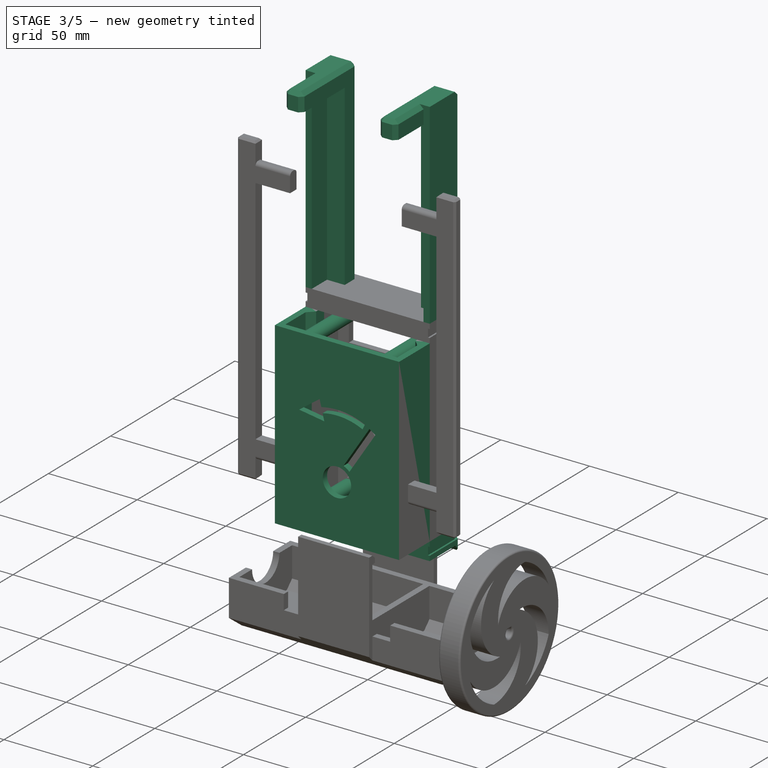
[diagram: stage 3 of 5 — iso view after this stage's code; geometry added in this stage tinted green]
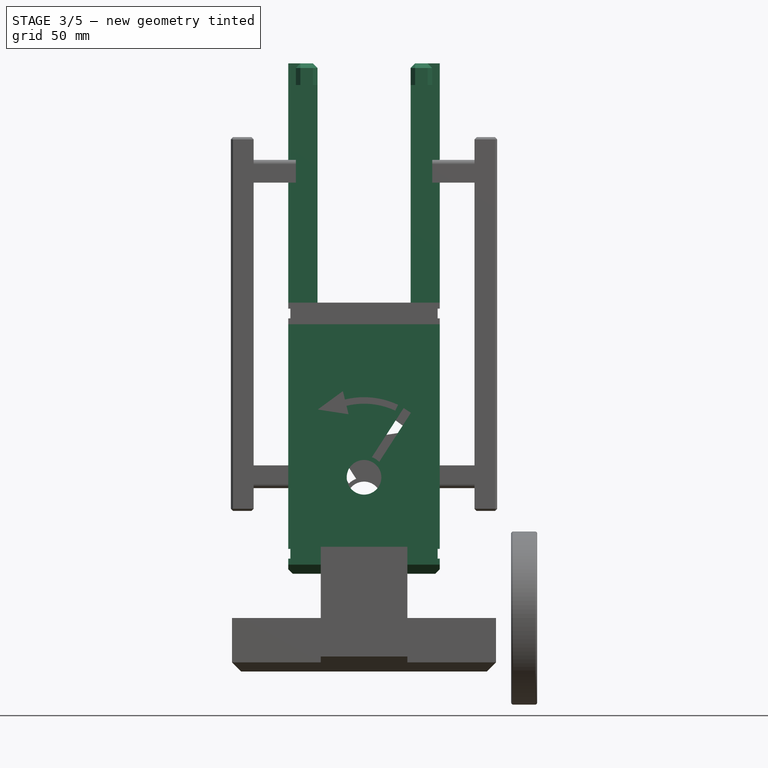
[diagram: stage 3 of 5 — front view after this stage's code; geometry added in this stage tinted green]
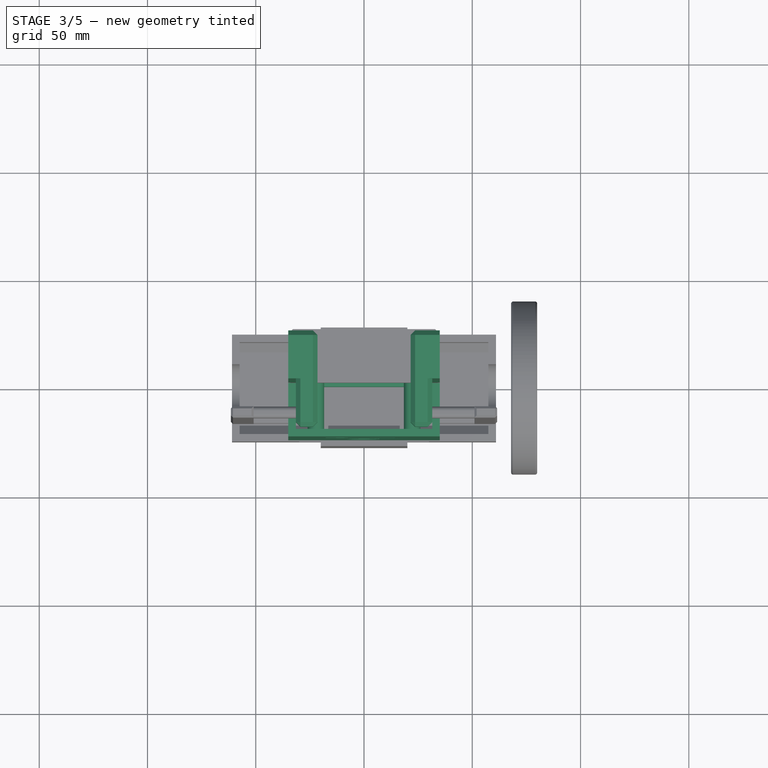
[diagram: stage 3 of 5 — top view after this stage's code; geometry added in this stage tinted green]
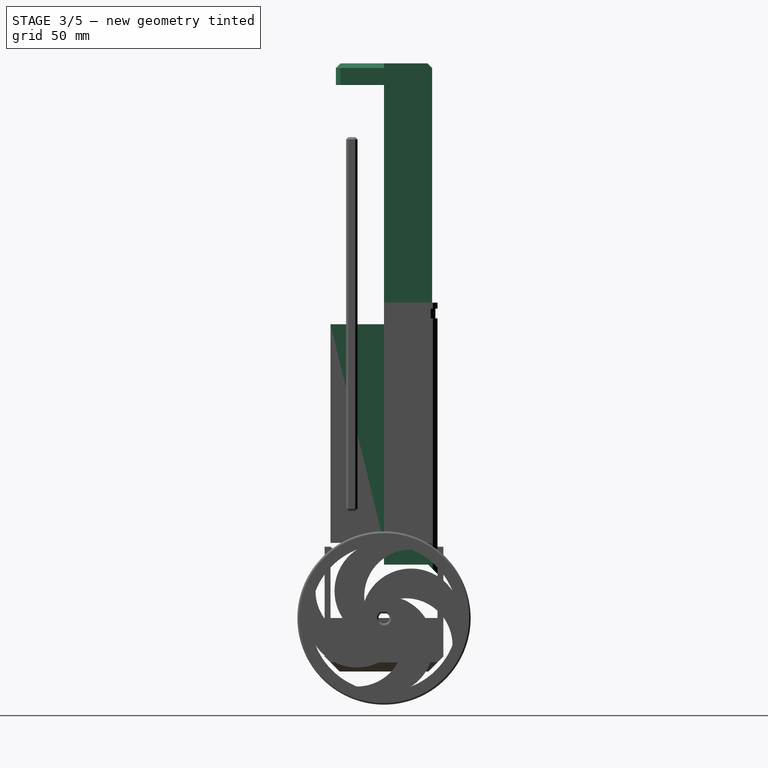
[diagram: stage 3 of 5 — right view after this stage's code; geometry added in this stage tinted green]
FEATURE [PartDesign::Body] Body007
  Group = -> [Sketch016,Pad013,Chamfer007,Sketch018,Pad015,Chamfer008]
  Origin = -> Origin012
  Tip = -> Chamfer008
FEATURE [Sketcher::SketchObject] Sketch019
  AttachmentOffset = pos=(0,0,-35) rot=(0,0,1;0rad)
  MapMode = 5
  Placement = pos=(-35,7.8e-15,-7.8e-15) rot=(0.57735,0.57735,0.57735;2.0944rad)
  Support = -> [YZ_Plane014]
  expr: AttachmentOffset.Base.z = -Dem.caseWidth / 2
  expr: Constraints[14] = Dem.housingY / 2
  expr: Constraints[12] = Dem.spacing
  expr: Constraints[11] = Dem.Indent
  expr: Constraints[10] = Dem.housingX / 2
  sketch-geometry (5):
    g0: LineSegment StartX=0 StartY=34.7 StartZ=0 EndX=0 EndY=24.7 EndZ=0
    g1: LineSegment StartX=0 StartY=24.7 StartZ=0 EndX=20.45 EndY=24.7 EndZ=0
    g2: LineSegment StartX=20.45 StartY=24.7 StartZ=0 EndX=24.7 EndY=20.45 EndZ=0
    g3: LineSegment StartX=24.7 StartY=20.45 StartZ=0 EndX=24.7 EndY=34.7 EndZ=0
    g4: LineSegment StartX=24.7 StartY=34.7 StartZ=0 EndX=0 EndY=34.7 EndZ=0
  constraints (15):
    c: Coincident(g0,g1)
    c: Coincident(g1,g2)
    c: Coincident(g2,g3)
    c: Coincident(g3,g4)
    c: Coincident(g4,g0)
    c: Horizontal(g4)
    c: Horizontal(g1)
    c: Vertical(g0)
    c: Vertical(g3)
    c: Angle(g3,g2) = 0.785398
    c: DistanceX(g0,g3) = 24.7
    c: DistanceX(g1,g2) = 4.25
    c: DistanceY(g0,g0) = 10
    c: DistanceX(g-1,g0) = 0
    c: DistanceY(g-1,g0) = 24.7
FEATURE [PartDesign::Pad] Pad016
  Length = 70
  Length2 = 100
  Placement = pos=(0,0,0) rot=(0.57735,0.57735,0.57735;2.0944rad)
  Profile = -> Sketch019
  Type = 0
  expr: Length = Dem.caseWidth
FEATURE [Sketcher::SketchObject] Sketch020
  AttachmentOffset = pos=(0,0,27.45) rot=(0,0,1;0rad)
  MapMode = 5
  Placement = pos=(0,0,27.45) rot=(0,0,1;0rad)
  Support = -> [XY_Plane015]
  expr: AttachmentOffset.Base.z = Dem.housingY / 2 + Dem.spacing / 2 - Dem.grooveWidth / 2
  expr: Constraints[35] = Dem.caseWidth / 2
  expr: Constraints[33] = Dem.caseWidth / 2 - Dem.stOffset / 2 - Dem.grooveDepth / 2
  expr: Constraints[27] = Dem.grooveDepth / 2
  expr: Constraints[32] = Dem.caseWidth
  expr: Constraints[29] = Dem.grooveDepth / 2
  expr: Constraints[26] = Dem.grooveDepth / 2
  expr: Constraints[31] = Dem.housingX / 2
  expr: Constraints[30] = Dem.housingX / 2
  expr: Constraints[28] = Dem.grooveDepth / 2
  expr: Constraints[25] = Dem.grooveDepth / 2
  expr: Constraints[10] = Dem.stOffset
  sketch-geometry (12):
    g0: LineSegment StartX=-35 StartY=24.7 StartZ=0 EndX=-35 EndY=0 EndZ=0
    g1: LineSegment StartX=-35 StartY=0 StartZ=0 EndX=-34 EndY=0 EndZ=0
    g2: LineSegment StartX=-20 StartY=22.7 StartZ=0 EndX=20 EndY=22.7 EndZ=0
    g3: LineSegment StartX=34 StartY=0 StartZ=0 EndX=35 EndY=0 EndZ=0
    g4: LineSegment StartX=35 StartY=0 StartZ=0 EndX=35 EndY=24.7 EndZ=0
    g5: LineSegment StartX=35 StartY=24.7 StartZ=0 EndX=-35 EndY=24.7 EndZ=0
    g6: LineSegment StartX=-34 StartY=23.7 StartZ=0 EndX=-34 EndY=0 EndZ=0
    g7: LineSegment StartX=-34 StartY=23.7 StartZ=0 EndX=-20 EndY=23.7 EndZ=0
    g8: LineSegment StartX=-20 StartY=23.7 StartZ=0 EndX=-20 EndY=22.7 EndZ=0
    g9: LineSegment StartX=20 StartY=23.7 StartZ=0 EndX=20 EndY=22.7 EndZ=0
    g10: LineSegment StartX=20 StartY=23.7 StartZ=0 EndX=34 EndY=23.7 EndZ=0
    g11: LineSegment StartX=34 StartY=23.7 StartZ=0 EndX=34 EndY=0 EndZ=0
  constraints (36):
    c: Coincident(g0,g1)
    c: Coincident(g3,g4)
    c: Coincident(g4,g5)
    c: Coincident(g5,g0)
    c: Horizontal(g5)
    c: Horizontal(g2)
    c: Horizontal(g1)
    c: Horizontal(g3)
    c: Vertical(g0)
    c: Vertical(g4)
    c: DistanceX(g2,g2) = 40
    c: Coincident(g6,g1)
    c: Coincident(g6,g7)
    c: Coincident(g7,g8)
    c: Coincident(g8,g2)
    c: Coincident(g2,g9)
    c: Coincident(g9,g10)
    c: Coincident(g10,g11)
    c: Coincident(g11,g3)
    c: Vertical(g6)
    c: Vertical(g8)
    c: Vertical(g9)
    c: Vertical(g11)
    c: Horizontal(g7)
    c: Horizontal(g10)
    c: DistanceY(g2,g7) = 1
    c: DistanceY(g2,g9) = 1
    c: DistanceX(g3,g3) = 1
    c: DistanceX(g0,g1) = 1
    c: DistanceY(g6,g0) = 1
    c: DistanceY(g0,g0) = 24.7
    c: DistanceY(g3,g4) = 24.7
    c: DistanceX(g0,g4) = 70
    c: DistanceX(g6,g7) = 14
    c: DistanceY(g-1,g0) = 0
    c: DistanceX(g0,g-1) = 35
FEATURE [PartDesign::Pad] Pad017
  Length = 4.5
  Length2 = 100
  Profile = -> Sketch020
  Type = 0
  expr: Length = Dem.grooveWidth
FEATURE [PartDesign::Body] Body009  label="Band2"
  Group = -> [Sketch020,Pad017]
  Origin = -> Origin015
  Tip = -> Pad017
FEATURE [PartDesign::Boolean] Boolean004
  BaseFeature = -> Pad016
  Group = -> [Body009]
  Type = 1
FEATURE [Sketcher::SketchObject] Sketch029
  AttachmentOffset = pos=(0,0,34.7) rot=(0,0,1;0rad)
  MapMode = 5
  Placement = pos=(0,0,34.7) rot=(0,0,1;0rad)
  Support = -> [XY_Plane020]
  expr: AttachmentOffset.Base.z = Dem.housingY / 2 + Dem.spacing
  expr: Constraints[21] = Dem.housingX / 2
  expr: Constraints[23] = Dem.housingX / 2
  expr: Constraints[19] = Dem.caseWidth
  expr: Constraints[18] = Dem.caseThinkness
  expr: Constraints[22] = Dem.caseWidth / 2
  expr: Constraints[17] = Dem.caseThinkness
  sketch-geometry (8):
    g0: LineSegment StartX=-35 StartY=0 StartZ=0 EndX=-35 EndY=-24.7 EndZ=0
    g1: LineSegment StartX=-35 StartY=-24.7 StartZ=0 EndX=35 EndY=-24.7 EndZ=0
    g2: LineSegment StartX=35 StartY=-24.7 StartZ=0 EndX=35 EndY=0 EndZ=0
    g3: LineSegment StartX=35 StartY=0 StartZ=0 EndX=31.5 EndY=0 EndZ=0
    g4: LineSegment StartX=31.5 StartY=0 StartZ=0 EndX=31.5 EndY=-21.2 EndZ=0
    g5: LineSegment StartX=31.5 StartY=-21.2 StartZ=0 EndX=-31.5 EndY=-21.2 EndZ=0
    g6: LineSegment StartX=-31.5 StartY=-21.2 StartZ=0 EndX=-31.5 EndY=0 EndZ=0
    g7: LineSegment StartX=-31.5 StartY=0 StartZ=0 EndX=-35 EndY=0 EndZ=0
  constraints (24):
    c: Coincident(g0,g1)
    c: Coincident(g1,g2)
    c: Coincident(g2,g3)
    c: Coincident(g3,g4)
    c: Coincident(g4,g5)
    c: Coincident(g5,g6)
    c: Coincident(g6,g7)
    c: Coincident(g7,g0)
    c: Vertical(g0)
    c: Vertical(g6)
    c: Vertical(g4)
    c: Vertical(g2)
    c: Horizontal(g7)
    c: Horizontal(g3)
    c: Horizontal(g5)
    c: Equal(g0,g2)
    c: Equal(g6,g4)
    c: DistanceX(g0,g6) = 3.5
    c: DistanceY(g1,g4) = 3.5
    c: DistanceX(g0,g1) = 70
    c: Equal(g7,g3)
    c: DistanceY(g0,g0) = 24.7
    c: DistanceX(g0,g-1) = 35
    c: DistanceY(g0,g-1) = 24.7
FEATURE [PartDesign::Pad] Pad025
  Length = 100.98
  Length2 = 100
  Profile = -> Sketch029
  Type = 0
  expr: Length = Dem.boardY + 2 * Dem.caseThinkness
FEATURE [Sketcher::SketchObject] Sketch030
  MapMode = 5
  Placement = pos=(0,-21.2,0) rot=(0,0.707107,0.707107;3.14159rad)
  Support = -> [Pad025]
  expr: Constraints[11] = Dem.boardPos - Dem.boardY / 2 + Dem.holeOffset
  expr: Constraints[10] = Dem.boardX / 2 - Dem.holeOffset
  expr: Constraints[9] = Dem.holeWidth
  expr: Constraints[8] = Dem.boardX - 2 * Dem.holeOffset
  expr: Constraints[7] = Dem.boardY - 2 * Dem.holeOffset
  sketch-geometry (4):
    g0: Circle CenterX=-22.225 CenterY=129.005 CenterZ=0 NormalX=0 NormalY=0 NormalZ=1 AngleXU=0 Radius=3.8
    g1: Circle CenterX=22.225 CenterY=129.005 CenterZ=0 NormalX=0 NormalY=0 NormalZ=1 AngleXU=0 Radius=3.8
    g2: Circle CenterX=-22.225 CenterY=41.375 CenterZ=0 NormalX=0 NormalY=0 NormalZ=1 AngleXU=0 Radius=3.8
    g3: Circle CenterX=22.225 CenterY=41.375 CenterZ=0 NormalX=0 NormalY=0 NormalZ=1 AngleXU=0 Radius=3.8
  constraints (12):
    c: Equal(g0,g1)
    c: Equal(g1,g2)
    c: Equal(g2,g3)
    c: DistanceX(g2,g0) = 0
    c: DistanceX(g1,g3) = 0
    c: DistanceY(g1,g0) = 0
    c: DistanceY(g3,g2) = 0
    c: DistanceY(g3,g1) = 87.63
    c: DistanceX(g0,g1) = 44.45
    c: Radius(g0) = 3.8
    c: DistanceX(g2,g-1) = 22.225
    c: DistanceY(g-1,g3) = 41.375
FEATURE [PartDesign::Pad] Pad026
  BaseFeature = -> Pad025
  Length = 37.4
  Length2 = 100
  Profile = -> Sketch030
  Type = 0
  expr: Length = -2 * Dem.caseThinkness + Dem.housingX - Dem.boardPadding - Dem.boardZ
FEATURE [Sketcher::SketchObject] Sketch031
  AttachmentOffset = pos=(0,0,-5) rot=(0,0,1;0rad)
  MapMode = 5
  Placement = pos=(0,5,1.1e-15) rot=(1,0,0;1.5708rad)
  Support = -> [XZ_Plane020]
  expr: Constraints[47] = Dem.caseWidth / 2 - Dem.caseThinkness
  expr: Constraints[46] = Dem.housingY / 2 + Dem.spacing
  expr: Constraints[45] = Dem.boardY + 2 * Dem.caseThinkness
  expr: Constraints[40] = Dem.caseWidth - 2 * Dem.caseThinkness
  expr: Constraints[39] = 3 * Dem.caseThinkness
  expr: Constraints[38] = Dem.caseThinkness
  sketch-geometry (16):
    g0: LineSegment StartX=31.5 StartY=135.68 StartZ=0 EndX=28 EndY=135.68 EndZ=0
    g1: LineSegment StartX=28 StartY=135.68 StartZ=0 EndX=28 EndY=125.18 EndZ=0
    g2: LineSegment StartX=28 StartY=125.18 StartZ=0 EndX=31.5 EndY=125.18 EndZ=0
    g3: LineSegment StartX=31.5 StartY=125.18 StartZ=0 EndX=31.5 EndY=135.68 EndZ=0
    g4: LineSegment StartX=-28 StartY=135.68 StartZ=0 EndX=-31.5 EndY=135.68 EndZ=0
    g5: LineSegment StartX=-31.5 StartY=135.68 StartZ=0 EndX=-31.5 EndY=125.18 EndZ=0
    g6: LineSegment StartX=-31.5 StartY=125.18 StartZ=0 EndX=-28 EndY=125.18 EndZ=0
    g7: LineSegment StartX=-28 StartY=125.18 StartZ=0 EndX=-28 EndY=135.68 EndZ=0
    g8: LineSegment StartX=31.5 StartY=45.2 StartZ=0 EndX=28 EndY=45.2 EndZ=0
    g9: LineSegment StartX=28 StartY=45.2 StartZ=0 EndX=28 EndY=34.7 EndZ=0
    g10: LineSegment StartX=28 StartY=34.7 StartZ=0 EndX=31.5 EndY=34.7 EndZ=0
    g11: LineSegment StartX=31.5 StartY=34.7 StartZ=0 EndX=31.5 EndY=45.2 EndZ=0
    g12: LineSegment StartX=-28 StartY=45.2 StartZ=0 EndX=-31.5 EndY=45.2 EndZ=0
    g13: LineSegment StartX=-31.5 StartY=45.2 StartZ=0 EndX=-31.5 EndY=34.7 EndZ=0
    g14: LineSegment StartX=-31.5 StartY=34.7 StartZ=0 EndX=-28 EndY=34.7 EndZ=0
    g15: LineSegment StartX=-28 StartY=34.7 StartZ=0 EndX=-28 EndY=45.2 EndZ=0
  constraints (48):
    c: Coincident(g0,g1)
    c: Coincident(g1,g2)
    c: Coincident(g2,g3)
    c: Coincident(g3,g0)
    c: Horizontal(g0)
    c: Horizontal(g2)
    c: Vertical(g1)
    c: Vertical(g3)
    c: Coincident(g4,g5)
    c: Coincident(g5,g6)
    c: Coincident(g6,g7)
    c: Coincident(g7,g4)
    c: Horizontal(g4)
    c: Horizontal(g6)
    c: Vertical(g5)
    c: Vertical(g7)
    c: Coincident(g8,g9)
    c: Coincident(g9,g10)
    c: Coincident(g10,g11)
    c: Coincident(g11,g8)
    c: Horizontal(g8)
    c: Horizontal(g10)
    c: Vertical(g9)
    c: Vertical(g11)
    c: Coincident(g12,g13)
    c: Coincident(g13,g14)
    c: Coincident(g14,g15)
    c: Coincident(g15,g12)
    c: Horizontal(g12)
    c: Horizontal(g14)
    c: Vertical(g13)
    c: Vertical(g15)
    c: Equal(g0,g8)
    c: Equal(g8,g12)
    c: Equal(g12,g4)
    c: Equal(g3,g7)
    c: Equal(g7,g15)
    c: Equal(g15,g11)
    c: DistanceX(g4,g4) = 3.5
    c: DistanceY(g5,g4) = 10.5
    c: DistanceX(g4,g0) = 63
    c: DistanceX(g12,g5) = 0
    c: DistanceX(g2,g8) = 0
    c: DistanceY(g14,g9) = 0
    c: DistanceY(g4,g0) = 0
    c: DistanceY(g13,g4) = 100.98
    c: DistanceY(g-1,g13) = 34.7
    c: DistanceX(g-1,g10) = 31.5
FEATURE [PartDesign::Pad] Pad027
  BaseFeature = -> Pad026
  Length = 10
  Length2 = 100
  Profile = -> Sketch031
  Type = 0
FEATURE [PartDesign::Chamfer] Chamfer009
  Base = -> Pad027 [Edge84,Edge81,Edge73,Edge69]
  BaseFeature = -> Pad027
  Size = 3.49
  expr: Size = Dem.caseThinkness - 0.01mm
FEATURE [PartDesign::Body] Body019
  Group = -> [Sketch036,Pad032]
  Origin = -> Origin027
  Tip = -> Pad032
FEATURE [App::Part] Part007  label="Battery"
  Group = -> [Body019]
  Origin = -> Origin026
FEATURE [Sketcher::SketchObject] Sketch037
  MapMode = 5
  Placement = pos=(0,0,145.68) rot=(0,0,1;0rad)
  Support = -> [Boolean007]
  expr: Constraints[22] = Dem.batX / 2
  expr: Constraints[20] = Dem.batZ / 2
  expr: Constraints[23] = Dem.batX / 2
  expr: Constraints[19] = Dem.strutWidth
  sketch-geometry (8):
    g0: LineSegment StartX=-31.5 StartY=22.25 StartZ=0 EndX=-21.5 EndY=22.25 EndZ=0
    g1: LineSegment StartX=-21.5 StartY=22.25 StartZ=0 EndX=-21.5 EndY=12.25 EndZ=0
    g2: LineSegment StartX=-21.5 StartY=12.25 StartZ=0 EndX=-31.5 EndY=12.25 EndZ=0
    g3: LineSegment StartX=-31.5 StartY=12.25 StartZ=0 EndX=-31.5 EndY=22.25 EndZ=0
    g4: LineSegment StartX=21.5 StartY=22.25 StartZ=0 EndX=31.5 EndY=22.25 EndZ=0
    g5: LineSegment StartX=31.5 StartY=22.25 StartZ=0 EndX=31.5 EndY=12.25 EndZ=0
    g6: LineSegment StartX=31.5 StartY=12.25 StartZ=0 EndX=21.5 EndY=12.25 EndZ=0
    g7: LineSegment StartX=21.5 StartY=12.25 StartZ=0 EndX=21.5 EndY=22.25 EndZ=0
  constraints (24):
    c: Coincident(g0,g1)
    c: Coincident(g1,g2)
    c: Coincident(g2,g3)
    c: Coincident(g3,g0)
    c: Horizontal(g0)
    c: Horizontal(g2)
    c: Vertical(g1)
    c: Vertical(g3)
    c: Coincident(g4,g5)
    c: Coincident(g5,g6)
    c: Coincident(g6,g7)
    c: Coincident(g7,g4)
    c: Horizontal(g4)
    c: Horizontal(g6)
    c: Vertical(g5)
    c: Vertical(g7)
    c: Equal(g3,g0)
    c: Equal(g7,g4)
    c: Equal(g3,g7)
    c: DistanceX(g0,g0) = 10
    c: DistanceY(g-1,g1) = 12.25
    c: DistanceY(g4,g0) = 0
    c: DistanceX(g2,g-1) = 31.5
    c: DistanceX(g-1,g5) = 31.5
FEATURE [PartDesign::Pad] Pad033
  BaseFeature = -> Boolean007
  Length = 110.5
  Length2 = 100
  Profile = -> Sketch037
  Type = 0
  expr: Length = Dem.strutWidth + Dem.batY
FEATURE [Sketcher::SketchObject] Sketch038
  MapMode = 5
  Placement = pos=(0,12.25,0) rot=(1,0,0;1.5708rad)
  Support = -> [Pad033]
  expr: Constraints[11] = Dem.batPos + Dem.batY / 2
  expr: Constraints[10] = Dem.batX / 2
  expr: Constraints[8] = Dem.strutWidth
  sketch-geometry (4):
    g0: LineSegment StartX=-31.5 StartY=256.18 StartZ=0 EndX=-21.5 EndY=256.18 EndZ=0
    g1: LineSegment StartX=-21.5 StartY=256.18 StartZ=0 EndX=-21.5 EndY=246.18 EndZ=0
    g2: LineSegment StartX=-21.5 StartY=246.18 StartZ=0 EndX=-31.5 EndY=246.18 EndZ=0
    g3: LineSegment StartX=-31.5 StartY=246.18 StartZ=0 EndX=-31.5 EndY=256.18 EndZ=0
  constraints (12):
    c: Coincident(g0,g1)
    c: Coincident(g1,g2)
    c: Coincident(g2,g3)
    c: Coincident(g3,g0)
    c: Horizontal(g0)
    c: Horizontal(g2)
    c: Vertical(g1)
    c: Vertical(g3)
    c: DistanceX(g0,g0) = 10
    c: Equal(g0,g3)
    c: DistanceX(g2,g-1) = 31.5
    c: DistanceY(g-1,g1) = 246.18
FEATURE [PartDesign::Pad] Pad034
  BaseFeature = -> Pad033
  Length = 34.5
  Length2 = 100
  Profile = -> Sketch038
  Type = 0
  expr: Length = Dem.batZ + Dem.strutWidth
FEATURE [Sketcher::SketchObject] Sketch039
  MapMode = 5
  Placement = pos=(0,12.25,0) rot=(1,0,0;1.5708rad)
  Support = -> [Pad034]
  expr: Constraints[11] = Dem.batPos + Dem.batY / 2
  expr: Constraints[10] = Dem.batX / 2
  expr: Constraints[9] = Dem.strutWidth
  sketch-geometry (4):
    g0: LineSegment StartX=21.5 StartY=256.18 StartZ=0 EndX=31.5 EndY=256.18 EndZ=0
    g1: LineSegment StartX=31.5 StartY=256.18 StartZ=0 EndX=31.5 EndY=246.18 EndZ=0
    g2: LineSegment StartX=31.5 StartY=246.18 StartZ=0 EndX=21.5 EndY=246.18 EndZ=0
    g3: LineSegment StartX=21.5 StartY=246.18 StartZ=0 EndX=21.5 EndY=256.18 EndZ=0
  constraints (12):
    c: Coincident(g0,g1)
    c: Coincident(g1,g2)
    c: Coincident(g2,g3)
    c: Coincident(g3,g0)
    c: Horizontal(g0)
    c: Horizontal(g2)
    c: Vertical(g1)
    c: Vertical(g3)
    c: Equal(g3,g0)
    c: DistanceX(g0,g0) = 10
    c: DistanceX(g-1,g1) = 31.5
    c: DistanceY(g-1,g2) = 246.18
FEATURE [PartDesign::Pad] Pad035
  BaseFeature = -> Pad034
  Length = 34.5
  Length2 = 100
  Profile = -> Sketch039
  Type = 0
  expr: Length = Dem.batZ + Dem.strutWidth
FEATURE [Sketcher::SketchObject] Sketch040
  MapMode = 5
  Placement = pos=(-31.5,0,0) rot=(0.57735,-0.57735,-0.57735;2.0944rad)
  Support = -> [Pad035]
  expr: Constraints[11] = Dem.batPos - Dem.batY / 2
  expr: Constraints[9] = Dem.batY + Dem.strutWidth
  expr: Constraints[8] = Dem.strutWidth + Dem.batZ / 2
  sketch-geometry (4):
    g0: LineSegment StartX=-22.25 StartY=256.18 StartZ=0 EndX=0 EndY=256.18 EndZ=0
    g1: LineSegment StartX=0 StartY=256.18 StartZ=0 EndX=0 EndY=145.68 EndZ=0
    g2: LineSegment StartX=0 StartY=145.68 StartZ=0 EndX=-22.25 EndY=145.68 EndZ=0
    g3: LineSegment StartX=-22.25 StartY=145.68 StartZ=0 EndX=-22.25 EndY=256.18 EndZ=0
  constraints (12):
    c: Coincident(g0,g1)
    c: Coincident(g1,g2)
    c: Coincident(g2,g3)
    c: Coincident(g3,g0)
    c: Horizontal(g0)
    c: Horizontal(g2)
    c: Vertical(g1)
    c: Vertical(g3)
    c: DistanceX(g0,g0) = 22.25
    c: DistanceY(g2,g0) = 110.5
    c: DistanceX(g1,g-1) = 0
    c: DistanceY(g-1,g2) = 145.68
FEATURE [PartDesign::Pad] Pad036
  BaseFeature = -> Pad035
  Length = 3.5
  Length2 = 100
  Profile = -> Sketch040
  Type = 0
  expr: Length = Dem.caseThinkness
FEATURE [PartDesign::Mirrored] Mirrored
  BaseFeature = -> Pad036
  MirrorPlane = -> YZ_Plane023
  Originals = -> [Pad036]
FEATURE [PartDesign::Body] Body011  label="BoardBacking"
  Group = -> [Sketch024,Pad021,Sketch025,Pad022,Sketch026,Pad023,Boolean005,Sketch042,Pocket002]
  Origin = -> Origin018
  Tip = -> Pocket002
FEATURE [Sketcher::SketchObject] Sketch043
  AttachmentOffset = pos=(0,10,-49.4) rot=(0,1,0;3.14159rad)
  MapMode = 5
  Placement = pos=(0,-24.7,10) rot=(-1,0,0;4.71239rad)
  Support = -> [Boolean005]
  expr: AttachmentOffset.Base.z = -Dem.housingX
  sketch-geometry (12):
    g0: Circle CenterX=0 CenterY=55 CenterZ=0 NormalX=0 NormalY=0 NormalZ=1 AngleXU=0 Radius=8
    g1: LineSegment StartX=3.64114 StartY=64.3135 StartZ=0 EndX=18.3029 EndY=86.9858 EndZ=0
    g2: LineSegment StartX=18.3029 StartY=86.9858 StartZ=0 EndX=21.6618 EndY=84.8137 EndZ=0
    g3: LineSegment StartX=21.6618 StartY=84.8137 StartZ=0 EndX=7 EndY=62.1414 EndZ=0
    g4: ArcOfCircle CenterX=0 CenterY=55 CenterZ=0 NormalX=0 NormalY=0 NormalZ=1 AngleXU=0 Radius=10 StartAngle=0.795399 EndAngle=1.19811
    g5: ArcOfCircle CenterX=0 CenterY=55 CenterZ=0 NormalX=0 NormalY=0 NormalZ=1 AngleXU=0 Radius=37 StartAngle=1.13222 EndAngle=1.8113
    g6: ArcOfCircle CenterX=0 CenterY=55 CenterZ=0 NormalX=0 NormalY=0 NormalZ=1 AngleXU=0 Radius=34 StartAngle=1.13222 EndAngle=1.8113
    g7: LineSegment StartX=15.712 StartY=88.4982 StartZ=0 EndX=14.4381 EndY=85.7822 EndZ=0
    g8: LineSegment StartX=-8.09863 StartY=88.0214 StartZ=0 EndX=-7.14586 EndY=84.1365 EndZ=0
    g9: LineSegment StartX=-7.14586 StartY=84.1365 StartZ=0 EndX=-21.3519 EndY=86.3154 EndZ=0
    g10: LineSegment StartX=-21.3519 StartY=86.3154 StartZ=0 EndX=-9.76599 EndY=94.8199 EndZ=0
    g11: LineSegment StartX=-9.76599 StartY=94.8199 StartZ=0 EndX=-8.81321 EndY=90.935 EndZ=0
  constraints (36):
    c: Coincident(g1,g2)
    c: Coincident(g2,g3)
    c: Coincident(g4,g1)
    c: Coincident(g4,g3)
    c: Coincident(g8,g9)
    c: Coincident(g9,g10)
    c: Coincident(g10,g11)
    c: Coincident(g11,g5)
    c: Coincident(g8,g6)
    c: Coincident(g7,g6)
    c: Coincident(g7,g5)
    c: Radius(g0) = 8
    c: Radius(g4) = 10
    c: Coincident(g4,g0)
    c: Coincident(g5,g0)
    c: Coincident(g6,g0)
    c: Parallel(g1,g3)
    c: Perpendicular(g1,g2)
    c: Distance(g2,g3) = 27
    c: Equal(g1,g3)
    c: Distance(g1,g2) = 4
    c: Parallel(g11,g8)
    c: Angle(g9,g10) = 0.785398
    c: Equal(g11,g8)
    c: Distance(g10,g5) = 4
    c: Equal(g10,g9)
    c: Radius(g5) = 37
    c: Radius(g6) = 34
    c: Distance(g5,g6) = 3
    c: Distance(g5,g6) = 3
    c: DistanceX(g0,g-1) = 0
    c: DistanceY(g-1,g0) = 55
    c: Distance(g10,g8) = 11
    c: Angle(g1,g8) = 0.814545
    c: DistanceX(g-1,g3) = 7
    c: Distance(g5,g1) = 3
FEATURE [PartDesign::Pocket] Pocket003
  BaseFeature = -> Chamfer009
  Length = 5
  Length2 = 100
  Profile = -> Sketch043
  Type = 0
FEATURE [PartDesign::Body] Body013  label="BoardCover"
  Group = -> [Sketch029,Pad025,Sketch030,Pad026,Sketch031,Pad027,Chamfer009,Sketch043,Pocket003]
  Origin = -> Origin020
  Tip = -> Pocket003
FEATURE [PartDesign::Boolean] Boolean008
  BaseFeature = -> Boolean004
  Group = -> [Body011,Body016]
  Type = 0
FEATURE [PartDesign::Chamfer] Chamfer010
  Base = -> Boolean008 [Edge43,Edge45,Edge47,Edge65,Edge130,Edge167,Edge166,Edge142,Edge135,Edge127,Edge57,Edge16,Edge27,Edge38]
  BaseFeature = -> Boolean008
  Size = 2.125
  expr: Size = Dem.Indent / 2
FEATURE [PartDesign::Chamfer] Chamfer012
  Base = -> Chamfer010 [Edge247,Edge248,Edge282,Edge285,Edge281,Edge257,Edge254,Edge242,Edge253,Edge261,Edge262,Edge259,Edge265,Edge287,Edge289,Edge272,Edge291,Edge271]
  BaseFeature = -> Chamfer010
  Size = 2.125
  expr: Size = Dem.Indent / 2
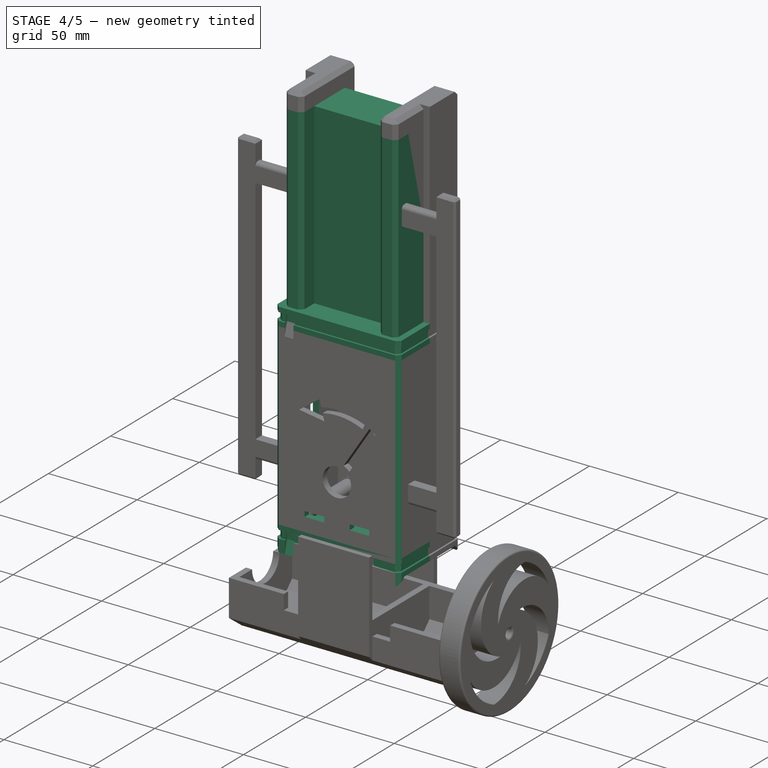
[diagram: stage 4 of 5 — iso view after this stage's code; geometry added in this stage tinted green]
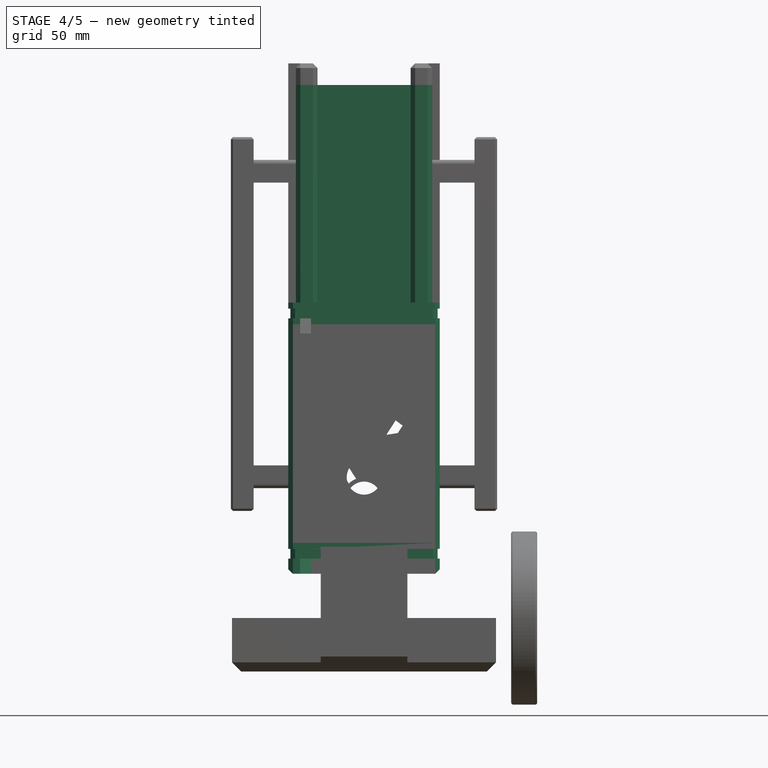
[diagram: stage 4 of 5 — front view after this stage's code; geometry added in this stage tinted green]
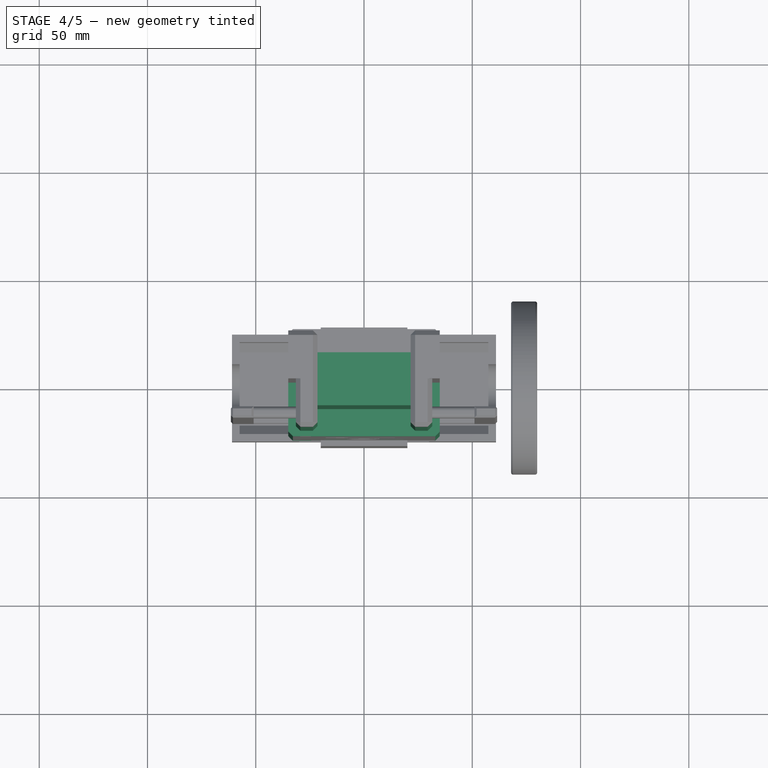
[diagram: stage 4 of 5 — top view after this stage's code; geometry added in this stage tinted green]
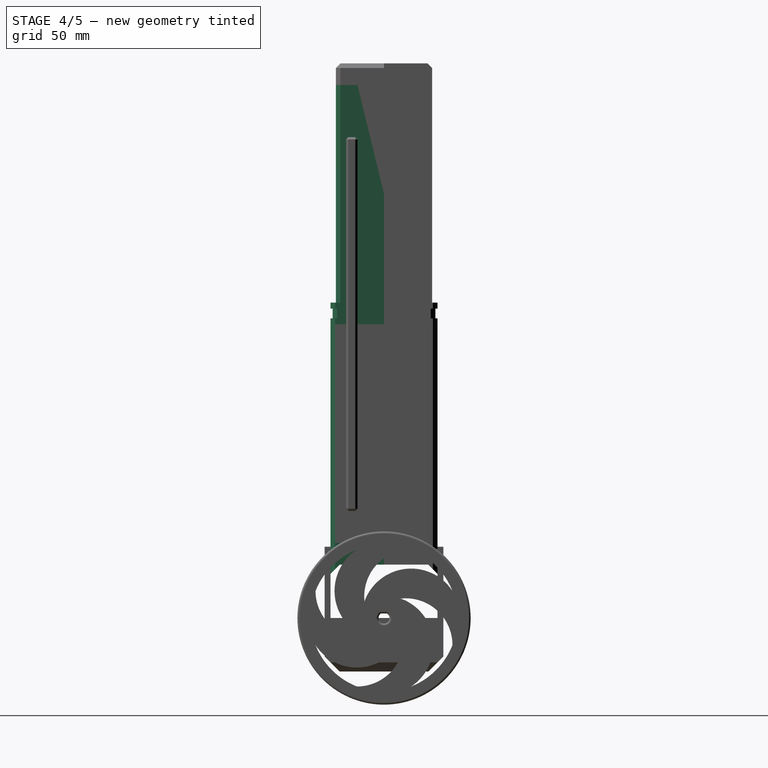
[diagram: stage 4 of 5 — right view after this stage's code; geometry added in this stage tinted green]
FEATURE [PartDesign::Body] Body003
  Group = -> [Sketch009,Pad009,Boolean001,Chamfer001,Sketch011,Pocket001,Chamfer003]
  Origin = -> Origin007
  Tip = -> Chamfer003
FEATURE [App::Part] Part002  label="StepperCaseTop"
  Group = -> [Body003]
  Origin = -> Origin004
FEATURE [Sketcher::SketchObject] Sketch012
  AttachmentOffset = pos=(0,0,-35) rot=(0,0,1;0rad)
  MapMode = 5
  Placement = pos=(-35,7.8e-15,-7.8e-15) rot=(0.57735,0.57735,0.57735;2.0944rad)
  Support = -> [YZ_Plane009]
  expr: AttachmentOffset.Base.z = -Dem.caseWidth / 2
  expr: Constraints[13] = Dem.housingY / 2
  expr: Constraints[12] = Dem.housingX / 2
  expr: Constraints[11] = Dem.Indent
  expr: Constraints[10] = Dem.housingX / 2
  expr: Constraints[9] = Dem.Indent + Dem.spacing
  sketch-geometry (5):
    g0: LineSegment StartX=-24.7 StartY=20.45 StartZ=0 EndX=-20.45 EndY=24.7 EndZ=0
    g1: LineSegment StartX=-20.45 StartY=24.7 StartZ=0 EndX=0 EndY=24.7 EndZ=0
    g2: LineSegment StartX=1e-15 StartY=24.7 StartZ=0 EndX=1e-15 EndY=34.7 EndZ=0
    g3: LineSegment StartX=1e-15 StartY=34.7 StartZ=0 EndX=-24.7 EndY=34.7 EndZ=0
    g4: LineSegment StartX=-24.7 StartY=34.7 StartZ=0 EndX=-24.7 EndY=20.45 EndZ=0
  constraints (15):
    c: Coincident(g0,g1)
    c: Coincident(g2,g3)
    c: Coincident(g3,g4)
    c: Coincident(g4,g0)
    c: Horizontal(g3)
    c: Horizontal(g1)
    c: Vertical(g4)
    c: Vertical(g2)
    c: Angle(g0,g4) = 0.785398
    c: DistanceY(g0,g3) = 14.25
    c: DistanceX(g3,g2) = 24.7
    c: DistanceX(g0,g0) = 4.25
    c: DistanceX(g0,g-1) = 24.7
    c: DistanceY(g-1,g0) = 24.7
    c: Coincident(g2,g1)
FEATURE [PartDesign::Pad] Pad010
  Length = 70
  Length2 = 100
  Placement = pos=(0,0,0) rot=(0.57735,0.57735,0.57735;2.0944rad)
  Profile = -> Sketch012
  Type = 0
  expr: Length = Dem.caseWidth
FEATURE [Sketcher::SketchObject] Sketch013
  AttachmentOffset = pos=(0,0,27.45) rot=(0,0,1;0rad)
  MapMode = 5
  Placement = pos=(0,0,27.45) rot=(0,0,1;0rad)
  Support = -> [XY_Plane010]
  expr: Constraints[35] = Dem.stOffset / 2
  expr: Constraints[32] = Dem.grooveDepth / 2
  expr: Constraints[34] = Dem.grooveDepth
  expr: Constraints[18] = Dem.caseWidth / 2
  expr: Constraints[13] = Dem.caseWidth
  expr: Constraints[16] = Dem.grooveDepth / 2
  expr: AttachmentOffset.Base.z = Dem.housingY / 2 + Dem.spacing / 2 - Dem.grooveWidth / 2
  expr: Constraints[17] = Dem.housingX / 2
  expr: Constraints[14] = Dem.grooveDepth / 2
  expr: Constraints[33] = Dem.stOffset
  expr: Constraints[15] = Dem.grooveDepth / 2
  expr: Constraints[19] = Dem.housingX / 2
  sketch-geometry (12):
    g0: LineSegment StartX=-35 StartY=0 StartZ=0 EndX=-35 EndY=-24.7 EndZ=0
    g1: LineSegment StartX=-35 StartY=-24.7 StartZ=0 EndX=35 EndY=-24.7 EndZ=0
    g2: LineSegment StartX=35 StartY=-24.7 StartZ=0 EndX=35 EndY=0 EndZ=0
    g3: LineSegment StartX=35 StartY=0 StartZ=0 EndX=34 EndY=0 EndZ=0
    g4: LineSegment StartX=34 StartY=0 StartZ=0 EndX=34 EndY=-23.7 EndZ=0
    g5: LineSegment StartX=-34 StartY=-23.7 StartZ=0 EndX=-34 EndY=0 EndZ=0
    g6: LineSegment StartX=-34 StartY=0 StartZ=0 EndX=-35 EndY=0 EndZ=0
    g7: LineSegment StartX=-34 StartY=-23.7 StartZ=0 EndX=-20 EndY=-23.7 EndZ=0
    g8: LineSegment StartX=-20 StartY=-23.7 StartZ=0 EndX=-20 EndY=-22.7 EndZ=0
    g9: LineSegment StartX=-20 StartY=-22.7 StartZ=0 EndX=20 EndY=-22.7 EndZ=0
    g10: LineSegment StartX=20 StartY=-22.7 StartZ=0 EndX=20 EndY=-23.7 EndZ=0
    g11: LineSegment StartX=20 StartY=-23.7 StartZ=0 EndX=34 EndY=-23.7 EndZ=0
  constraints (36):
    c: Coincident(g0,g1)
    c: Coincident(g1,g2)
    c: Coincident(g2,g3)
    c: Coincident(g3,g4)
    c: Coincident(g5,g6)
    c: Coincident(g6,g0)
    c: Vertical(g0)
    c: Vertical(g5)
    c: Vertical(g4)
    c: Vertical(g2)
    c: Horizontal(g1)
    c: Horizontal(g3)
    c: Horizontal(g6)
    c: DistanceX(g0,g1) = 70
    c: DistanceX(g0,g5) = 1
    c: DistanceX(g3,g2) = 1
    c: DistanceY(g1,g4) = 1
    c: DistanceY(g0,g0) = 24.7
    c: DistanceX(g0,g-1) = 35
    c: DistanceY(g1,g2) = 24.7
    c: DistanceY(g0,g-1) = 0
    c: Coincident(g7,g8)
    c: Coincident(g8,g9)
    c: Coincident(g9,g10)
    c: Coincident(g10,g11)
    c: Coincident(g5,g7)
    c: Coincident(g11,g4)
    c: Horizontal(g7)
    c: Horizontal(g9)
    c: Horizontal(g11)
    c: Vertical(g8)
    c: Vertical(g10)
    c: DistanceY(g0,g5) = 1
    c: DistanceX(g8,g9) = 40
    c: DistanceY(g0,g8) = 2
    c: DistanceX(g7,g-1) = 20
FEATURE [PartDesign::Pad] Pad011
  Length = 4.5
  Length2 = 100
  Profile = -> Sketch013
  Type = 0
  expr: Length = Dem.grooveWidth
FEATURE [PartDesign::Body] Body005  label="Band"
  Group = -> [Sketch013,Pad011]
  Origin = -> Origin010
  Tip = -> Pad011
FEATURE [PartDesign::Boolean] Boolean002
  BaseFeature = -> Pad010
  Group = -> [Body005]
  Type = 1
FEATURE [Sketcher::SketchObject] Sketch032
  AttachmentOffset = pos=(0,0,135.68) rot=(0,0,1;0rad)
  MapMode = 5
  Placement = pos=(0,0,135.68) rot=(0,0,1;0rad)
  Support = -> [XY_Plane021]
  expr: Constraints[10] = Dem.caseWidth / 2
  expr: Constraints[9] = Dem.housingX / 2
  expr: AttachmentOffset.Base.z = Dem.boardPos + Dem.boardY / 2 + Dem.caseThinkness
  expr: Constraints[8] = Dem.caseWidth
  sketch-geometry (4):
    g0: LineSegment StartX=-35 StartY=0 StartZ=0 EndX=35 EndY=0 EndZ=0
    g1: LineSegment StartX=35 StartY=0 StartZ=0 EndX=35 EndY=-24.7 EndZ=0
    g2: LineSegment StartX=35 StartY=-24.7 StartZ=0 EndX=-35 EndY=-24.7 EndZ=0
    g3: LineSegment StartX=-35 StartY=-24.7 StartZ=0 EndX=-35 EndY=0 EndZ=0
  constraints (12):
    c: Coincident(g0,g1)
    c: Coincident(g1,g2)
    c: Coincident(g2,g3)
    c: Coincident(g3,g0)
    c: Horizontal(g0)
    c: Horizontal(g2)
    c: Vertical(g1)
    c: Vertical(g3)
    c: DistanceX(g0,g0) = 70
    c: DistanceY(g1,g0) = 24.7
    c: DistanceX(g2,g-1) = 35
    c: DistanceY(g-1,g0) = 0
FEATURE [PartDesign::Pad] Pad028
  Length = 10
  Length2 = 100
  Profile = -> Sketch032
  Type = 0
  expr: Length = Dem.spacing
FEATURE [Sketcher::SketchObject] Sketch033
  AttachmentOffset = pos=(0,0,138.43) rot=(0,0,1;0rad)
  MapMode = 5
  Placement = pos=(0,0,138.43) rot=(0,0,1;0rad)
  Support = -> [XY_Plane022]
  expr: Constraints[20] = Dem.grooveDepth / 2
  expr: Constraints[19] = Dem.housingX / 2
  expr: Constraints[18] = Dem.caseWidth
  expr: Constraints[22] = Dem.caseWidth / 2
  expr: Constraints[17] = Dem.grooveDepth / 2
  expr: AttachmentOffset.Base.z = Dem.boardPos + Dem.boardY / 2 + Dem.caseThinkness + Dem.spacing / 2 - Dem.grooveWidth / 2
  expr: Constraints[16] = Dem.grooveDepth / 2
  sketch-geometry (8):
    g0: LineSegment StartX=-35 StartY=0 StartZ=0 EndX=-35 EndY=-24.7 EndZ=0
    g1: LineSegment StartX=-35 StartY=-24.7 StartZ=0 EndX=35 EndY=-24.7 EndZ=0
    g2: LineSegment StartX=35 StartY=-24.7 StartZ=0 EndX=35 EndY=0 EndZ=0
    g3: LineSegment StartX=35 StartY=0 StartZ=0 EndX=34 EndY=0 EndZ=0
    g4: LineSegment StartX=34 StartY=0 StartZ=0 EndX=34 EndY=-23.7 EndZ=0
    g5: LineSegment StartX=34 StartY=-23.7 StartZ=0 EndX=-34 EndY=-23.7 EndZ=0
    g6: LineSegment StartX=-34 StartY=-23.7 StartZ=0 EndX=-34 EndY=0 EndZ=0
    g7: LineSegment StartX=-34 StartY=0 StartZ=0 EndX=-35 EndY=0 EndZ=0
  constraints (24):
    c: Coincident(g0,g1)
    c: Coincident(g1,g2)
    c: Coincident(g2,g3)
    c: Coincident(g3,g4)
    c: Coincident(g4,g5)
    c: Coincident(g5,g6)
    c: Coincident(g6,g7)
    c: Coincident(g7,g0)
    c: Vertical(g0)
    c: Vertical(g6)
    c: Vertical(g4)
    c: Vertical(g2)
    c: Horizontal(g7)
    c: Horizontal(g5)
    c: Horizontal(g3)
    c: Horizontal(g1)
    c: DistanceY(g1,g4) = 1
    c: DistanceX(g3,g2) = 1
    c: DistanceX(g0,g1) = 70
    c: DistanceY(g0,g0) = 24.7
    c: DistanceX(g0,g6) = 1
    c: Equal(g0,g2)
    c: DistanceX(g0,g-1) = 35
    c: DistanceY(g2,g-1) = 0
FEATURE [PartDesign::Pad] Pad029
  Length = 4.5
  Length2 = 100
  Profile = -> Sketch033
  Type = 0
  expr: Length = Dem.grooveWidth
FEATURE [PartDesign::Body] Body015
  Group = -> [Sketch033,Pad029]
  Origin = -> Origin022
  Tip = -> Pad029
FEATURE [PartDesign::Boolean] Boolean006
  BaseFeature = -> Pad028
  Group = -> [Body015]
  Type = 1
FEATURE [Sketcher::SketchObject] Sketch036
  AttachmentOffset = pos=(0,0,-12.25) rot=(0,0,1;0rad)
  MapMode = 5
  Placement = pos=(0,12.25,2.7e-15) rot=(1,0,0;1.5708rad)
  Support = -> [XZ_Plane027]
  expr: Constraints[11] = Dem.batPos - Dem.batY / 2
  expr: Constraints[10] = Dem.batX / 2
  expr: Constraints[9] = Dem.batY
  expr: AttachmentOffset.Base.z = -Dem.batZ / 2
  expr: Constraints[8] = Dem.batX
  sketch-geometry (4):
    g0: LineSegment StartX=-31.5 StartY=246.18 StartZ=0 EndX=31.5 EndY=246.18 EndZ=0
    g1: LineSegment StartX=31.5 StartY=246.18 StartZ=0 EndX=31.5 EndY=145.68 EndZ=0
    g2: LineSegment StartX=31.5 StartY=145.68 StartZ=0 EndX=-31.5 EndY=145.68 EndZ=0
    g3: LineSegment StartX=-31.5 StartY=145.68 StartZ=0 EndX=-31.5 EndY=246.18 EndZ=0
  constraints (12):
    c: Coincident(g0,g1)
    c: Coincident(g1,g2)
    c: Coincident(g2,g3)
    c: Coincident(g3,g0)
    c: Horizontal(g0)
    c: Horizontal(g2)
    c: Vertical(g1)
    c: Vertical(g3)
    c: DistanceX(g0,g0) = 63
    c: DistanceY(g2,g0) = 100.5
    c: DistanceX(g2,g-1) = 31.5
    c: DistanceY(g-1,g2) = 145.68
FEATURE [PartDesign::Pad] Pad032
  Length = 24.5
  Length2 = 100
  Placement = pos=(0,0,0) rot=(1,0,0;1.5708rad)
  Profile = -> Sketch036
  Type = 0
  expr: Length = Dem.batZ
FEATURE [PartDesign::Body] Body016  label="Zip003"
  Group = -> [Sketch034,Pad030,Boolean007,Sketch037,Pad033,Sketch038,Pad034,Sketch039,Pad035,Sketch040,Pad036,Mirrored]
  Origin = -> Origin023
  Tip = -> Mirrored
FEATURE [Sketcher::SketchObject] Sketch041
  MapMode = 5
  Placement = pos=(0,0,145.68) rot=(0,0,1;0rad)
  Support = -> [Boolean006]
  expr: Constraints[21] = Dem.batX / 2
  expr: Constraints[20] = Dem.batX / 2
  expr: Constraints[23] = Dem.batZ / 2
  expr: Constraints[19] = Dem.strutWidth
  sketch-geometry (8):
    g0: LineSegment StartX=-31.5 StartY=-12.25 StartZ=0 EndX=-21.5 EndY=-12.25 EndZ=0
    g1: LineSegment StartX=-21.5 StartY=-12.25 StartZ=0 EndX=-21.5 EndY=-22.25 EndZ=0
    g2: LineSegment StartX=-21.5 StartY=-22.25 StartZ=0 EndX=-31.5 EndY=-22.25 EndZ=0
    g3: LineSegment StartX=-31.5 StartY=-22.25 StartZ=0 EndX=-31.5 EndY=-12.25 EndZ=0
    g4: LineSegment StartX=21.5 StartY=-12.25 StartZ=0 EndX=31.5 EndY=-12.25 EndZ=0
    g5: LineSegment StartX=31.5 StartY=-12.25 StartZ=0 EndX=31.5 EndY=-22.25 EndZ=0
    g6: LineSegment StartX=31.5 StartY=-22.25 StartZ=0 EndX=21.5 EndY=-22.25 EndZ=0
    g7: LineSegment StartX=21.5 StartY=-22.25 StartZ=0 EndX=21.5 EndY=-12.25 EndZ=0
  constraints (24):
    c: Coincident(g0,g1)
    c: Coincident(g1,g2)
    c: Coincident(g2,g3)
    c: Coincident(g3,g0)
    c: Horizontal(g0)
    c: Horizontal(g2)
    c: Vertical(g1)
    c: Vertical(g3)
    c: Coincident(g4,g5)
    c: Coincident(g5,g6)
    c: Coincident(g6,g7)
    c: Coincident(g7,g4)
    c: Horizontal(g4)
    c: Horizontal(g6)
    c: Vertical(g5)
    c: Vertical(g7)
    c: Equal(g3,g0)
    c: Equal(g7,g4)
    c: Equal(g3,g7)
    c: DistanceX(g2,g1) = 10
    c: DistanceX(g-1,g4) = 31.5
    c: DistanceX(g0,g-1) = 31.5
    c: DistanceY(g1,g6) = 0
    c: DistanceY(g0,g-1) = 12.25
FEATURE [PartDesign::Pad] Pad037
  BaseFeature = -> Boolean006
  Length = 100.5
  Length2 = 100
  Profile = -> Sketch041
  Type = 0
  expr: Length = Dem.batY
FEATURE [PartDesign::Boolean] Boolean009
  BaseFeature = -> Boolean002
  Group = -> [Body013,Body014]
  Type = 0
FEATURE [PartDesign::Chamfer] Chamfer011
  Base = -> Boolean009 [Edge5,Edge35,Edge51,Edge81,Edge209,Edge166,Edge208,Edge196,Edge189,Edge183,Edge108,Edge78,Edge37,Edge6]
  BaseFeature = -> Boolean009
  Size = 2.125
  expr: Size = Dem.Indent / 2
FEATURE [PartDesign::Chamfer] Chamfer013
  Base = -> Chamfer011 [Edge289,Edge287,Edge281,Edge279]
  BaseFeature = -> Chamfer011
  Size = 2.125
  expr: Size = Dem.Indent / 2
FEATURE [Sketcher::SketchObject] Sketch044
  MapMode = 5
  Placement = pos=(-35,0,0) rot=(0.57735,-0.57735,-0.57735;2.0944rad)
  Support = -> [Chamfer012]
  expr: Constraints[14] = Dem.boardPos + Dem.boardY / 2 - Dem.uploadY + Dem.uploadWidth / 2
  expr: Constraints[13] = Dem.housingX / 2 - Dem.caseThinkness - Dem.boardPadding - Dem.boardZ - Dem.uploadX + Dem.uploadHight / 2
  expr: Constraints[11] = Dem.uploadHight
  expr: Constraints[2] = Dem.boardPos + Dem.boardY / 2 - Dem.powerY
  expr: Constraints[12] = Dem.uploadWidth
  expr: Constraints[1] = Dem.housingX / 2 - Dem.caseThinkness - Dem.boardPadding - Dem.boardZ - Dem.powerX
  expr: Constraints[0] = Dem.powerRad
  sketch-geometry (5):
    g0: Circle CenterX=-9.7 CenterY=101.7 CenterZ=0 NormalX=0 NormalY=0 NormalZ=1 AngleXU=0 Radius=5.5
    g1: LineSegment StartX=-5.84 StartY=87.38 StartZ=0 EndX=1.16 EndY=87.38 EndZ=0
    g2: LineSegment StartX=1.16 StartY=87.38 StartZ=0 EndX=1.16 EndY=75.38 EndZ=0
    g3: LineSegment StartX=1.16 StartY=75.38 StartZ=0 EndX=-5.84 EndY=75.38 EndZ=0
    g4: LineSegment StartX=-5.84 StartY=75.38 StartZ=0 EndX=-5.84 EndY=87.38 EndZ=0
  constraints (15):
    c: Radius(g0) = 5.5
    c: DistanceX(g0,g-1) = 9.7
    c: DistanceY(g-1,g0) = 101.7
    c: Coincident(g1,g2)
    c: Coincident(g2,g3)
    c: Coincident(g3,g4)
    c: Coincident(g4,g1)
    c: Horizontal(g1)
    c: Horizontal(g3)
    c: Vertical(g2)
    c: Vertical(g4)
    c: DistanceX(g1,g1) = 7
    c: DistanceY(g2,g1) = 12
    c: DistanceX(g3,g-1) = 5.84
    c: DistanceY(g-1,g1) = 87.38
FEATURE [PartDesign::Pocket] Pocket004
  BaseFeature = -> Chamfer012
  Length = 5
  Length2 = 100
  Profile = -> Sketch044
  Type = 0
FEATURE [PartDesign::Body] Body008  label="Frame"
  Group = -> [Sketch019,Pad016,Boolean004,Boolean008,Chamfer010,Chamfer012,Sketch044,Pocket004]
  Origin = -> Origin014
  Tip = -> Pocket004
FEATURE [App::Part] Part005  label="FrontPlate"
  Group = -> [Body008]
  Origin = -> Origin013
FEATURE [Sketcher::SketchObject] Sketch045
  MapMode = 5
  Placement = pos=(-35,0,0) rot=(0.57735,-0.57735,-0.57735;2.0944rad)
  Support = -> [Chamfer012]
  expr: Constraints[14] = Dem.boardPos + Dem.boardY / 2 - Dem.uploadY + Dem.uploadWidth / 2
  expr: Constraints[13] = Dem.housingX / 2 - Dem.caseThinkness - Dem.boardPadding - Dem.boardZ - Dem.uploadX + Dem.uploadHight / 2
  expr: Constraints[11] = Dem.uploadHight
  expr: Constraints[2] = Dem.boardPos + Dem.boardY / 2 - Dem.powerY
  expr: Constraints[12] = Dem.uploadWidth
  expr: Constraints[1] = Dem.housingX / 2 - Dem.caseThinkness - Dem.boardPadding - Dem.boardZ - Dem.powerX
  expr: Constraints[0] = Dem.powerRad
  sketch-geometry (5):
    g0: Circle CenterX=-9.7 CenterY=101.7 CenterZ=0 NormalX=0 NormalY=0 NormalZ=1 AngleXU=0 Radius=5.5
    g1: LineSegment StartX=-5.84 StartY=87.38 StartZ=0 EndX=1.16 EndY=87.38 EndZ=0
    g2: LineSegment StartX=1.16 StartY=87.38 StartZ=0 EndX=1.16 EndY=75.38 EndZ=0
    g3: LineSegment StartX=1.16 StartY=75.38 StartZ=0 EndX=-5.84 EndY=75.38 EndZ=0
    g4: LineSegment StartX=-5.84 StartY=75.38 StartZ=0 EndX=-5.84 EndY=87.38 EndZ=0
  constraints (15):
    c: Radius(g0) = 5.5
    c: DistanceX(g0,g-1) = 9.7
    c: DistanceY(g-1,g0) = 101.7
    c: Coincident(g1,g2)
    c: Coincident(g2,g3)
    c: Coincident(g3,g4)
    c: Coincident(g4,g1)
    c: Horizontal(g1)
    c: Horizontal(g3)
    c: Vertical(g2)
    c: Vertical(g4)
    c: DistanceX(g1,g1) = 7
    c: DistanceY(g2,g1) = 12
    c: DistanceX(g3,g-1) = 5.84
    c: DistanceY(g-1,g1) = 87.38
FEATURE [PartDesign::Pocket] Pocket005
  BaseFeature = -> Chamfer013
  Length = 5
  Length2 = 100
  Profile = -> Sketch045
  Type = 0
FEATURE [Sketcher::SketchObject] Sketch046
  MapMode = 5
  Placement = pos=(0,-24.7,0) rot=(1,0,0;1.5708rad)
  Support = -> [Pocket005]
  expr: Constraints[22] = Dem.boardX / 2 - Dem.stepX + Dem.stepWidth / 2
  expr: Constraints[21] = Dem.boardX / 2 - Dem.stepX + Dem.stepWidth / 2
  expr: Constraints[20] = Dem.stepHight
  expr: Constraints[23] = Dem.boardPos - Dem.boardY / 2 + Dem.stepY - Dem.stepHight / 2
  expr: Constraints[19] = Dem.stepWidth
  sketch-geometry (8):
    g0: LineSegment StartX=-18.2 StartY=45.5 StartZ=0 EndX=-7.2 EndY=45.5 EndZ=0
    g1: LineSegment StartX=-7.2 StartY=45.5 StartZ=0 EndX=-7.2 EndY=42.5 EndZ=0
    g2: LineSegment StartX=-7.2 StartY=42.5 StartZ=0 EndX=-18.2 EndY=42.5 EndZ=0
    g3: LineSegment StartX=-18.2 StartY=42.5 StartZ=0 EndX=-18.2 EndY=45.5 EndZ=0
    g4: LineSegment StartX=7.2 StartY=45.5 StartZ=0 EndX=18.2 EndY=45.5 EndZ=0
    g5: LineSegment StartX=18.2 StartY=45.5 StartZ=0 EndX=18.2 EndY=42.5 EndZ=0
    g6: LineSegment StartX=18.2 StartY=42.5 StartZ=0 EndX=7.2 EndY=42.5 EndZ=0
    g7: LineSegment StartX=7.2 StartY=42.5 StartZ=0 EndX=7.2 EndY=45.5 EndZ=0
  constraints (24):
    c: Coincident(g0,g1)
    c: Coincident(g1,g2)
    c: Coincident(g2,g3)
    c: Coincident(g3,g0)
    c: Horizontal(g0)
    c: Horizontal(g2)
    c: Vertical(g1)
    c: Vertical(g3)
    c: Coincident(g4,g5)
    c: Coincident(g5,g6)
    c: Coincident(g6,g7)
    c: Coincident(g7,g4)
    c: Horizontal(g4)
    c: Horizontal(g6)
    c: Vertical(g5)
    c: Vertical(g7)
    c: Equal(g0,g4)
    c: Equal(g3,g7)
    c: DistanceY(g4,g0) = 0
    c: DistanceX(g4,g4) = 11
    c: DistanceY(g5,g4) = 3
    c: DistanceX(g2,g-1) = 18.2
    c: DistanceX(g-1,g5) = 18.2
    c: DistanceY(g-1,g1) = 42.5
FEATURE [PartDesign::Pocket] Pocket006
  BaseFeature = -> Pocket005
  Length = 5
  Length2 = 100
  Profile = -> Sketch046
  Type = 0
FEATURE [Sketcher::SketchObject] Sketch048
  AttachmentOffset = pos=(0,0,-24.5) rot=(0,0,1;0rad)
  MapMode = 5
  Placement = pos=(-24.5,5.4e-15,-5.4e-15) rot=(0.57735,0.57735,0.57735;2.0944rad)
  Support = -> [YZ_Plane009]
  expr: Constraints[28] = Dem.grooveWidth
  expr: AttachmentOffset.Base.z = -Dem.stOffset / 4 - Dem.caseWidth / 4 + 3mm
  expr: Constraints[8] = Dem.spacing / 2 - Dem.grooveWidth / 2 + Dem.Indent
  expr: Constraints[7] = Dem.grooveDepth
  expr: Constraints[6] = Dem.boardY + 2 * Dem.caseThinkness + Dem.spacing
  expr: Constraints[10] = Dem.housingX / 2
  expr: Constraints[9] = Dem.housingY / 2 + Dem.spacing / 2 - Dem.grooveWidth / 2
  sketch-geometry (10):
    g0: LineSegment StartX=-24.7 StartY=138.43 StartZ=0 EndX=-24.7 EndY=131.43 EndZ=0
    g1: LineSegment StartX=-24.7 StartY=131.43 StartZ=0 EndX=-22.7 EndY=138.43 EndZ=0
    g2: LineSegment StartX=-22.7 StartY=27.45 StartZ=0 EndX=-24.7 EndY=20.45 EndZ=0
    g3: LineSegment StartX=-24.7 StartY=20.45 StartZ=0 EndX=-24.7 EndY=27.45 EndZ=0
    g4: LineSegment StartX=-24.7 StartY=27.45 StartZ=0 EndX=-24.7 EndY=31.95 EndZ=0
    g5: LineSegment StartX=-24.7 StartY=31.95 StartZ=0 EndX=-22.7 EndY=31.95 EndZ=0
    g6: LineSegment StartX=-22.7 StartY=31.95 StartZ=0 EndX=-22.7 EndY=27.45 EndZ=0
    g7: LineSegment StartX=-24.7 StartY=138.43 StartZ=0 EndX=-24.7 EndY=142.93 EndZ=0
    g8: LineSegment StartX=-24.7 StartY=142.93 StartZ=0 EndX=-22.7 EndY=142.93 EndZ=0
    g9: LineSegment StartX=-22.7 StartY=142.93 StartZ=0 EndX=-22.7 EndY=138.43 EndZ=0
  constraints (30):
    c: Coincident(g0,g1)
    c: Coincident(g2,g3)
    c: Vertical(g0)
    c: Vertical(g3)
    c: Equal(g0,g3)
    c: DistanceX(g3,g0) = 0
    c: DistanceY(g3,g0) = 110.98
    c: DistanceX(g0,g1) = 2
    c: DistanceY(g2,g3) = 7
    c: DistanceY(g3) = 27.45
    c: DistanceX(g2,g-1) = 24.7
    c: Coincident(g4,g5)
    c: Coincident(g5,g6)
    c: Coincident(g7,g8)
    c: Coincident(g8,g9)
    c: Coincident(g3,g4)
    c: Coincident(g2,g6)
    c: Coincident(g7,g0)
    c: Coincident(g9,g1)
    c: Vertical(g7)
    c: Vertical(g9)
    c: Vertical(g4)
    c: Vertical(g6)
    c: Horizontal(g5)
    c: Horizontal(g8)
    c: Equal(g7,g9)
    c: Equal(g4,g6)
    c: Equal(g7,g4)
    c: DistanceY(g1,g8) = 4.5
    c: Equal(g5,g8)
FEATURE [PartDesign::Pocket] Pocket007
  BaseFeature = -> Pocket006
  Length = 5
  Length2 = 100
  Profile = -> Sketch048
  Type = 0
FEATURE [PartDesign::Body] Body021
  Group = -> [Sketch050,Pad039,Fillet001,Chamfer015]
  Origin = -> Origin029
  Tip = -> Chamfer015
FEATURE [PartDesign::Boolean] Boolean011
  BaseFeature = -> Pocket007
  Group = -> [Body021,Body020]
  Type = 0
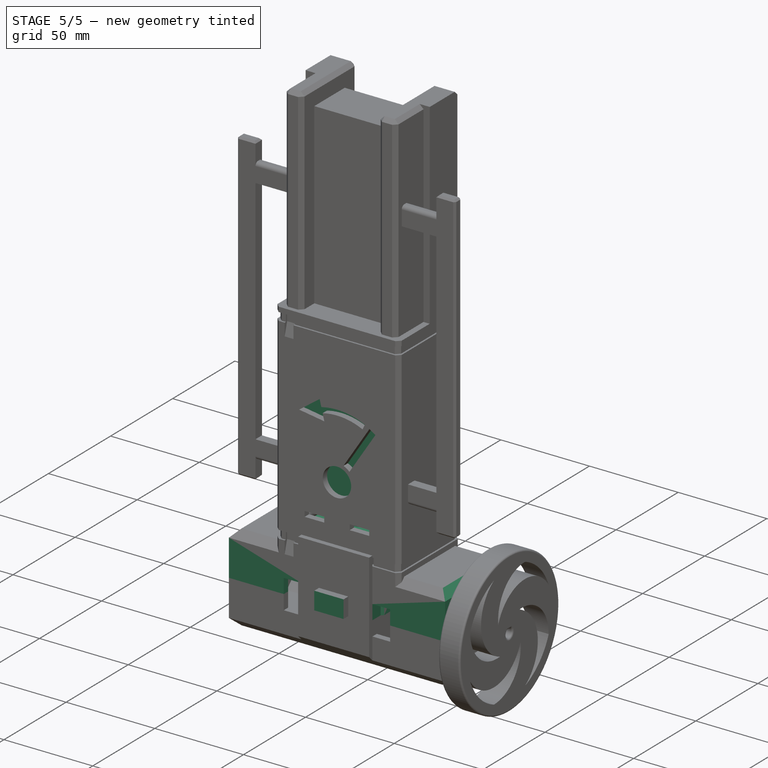
[diagram: stage 5 of 5 — iso view after this stage's code; geometry added in this stage tinted green]
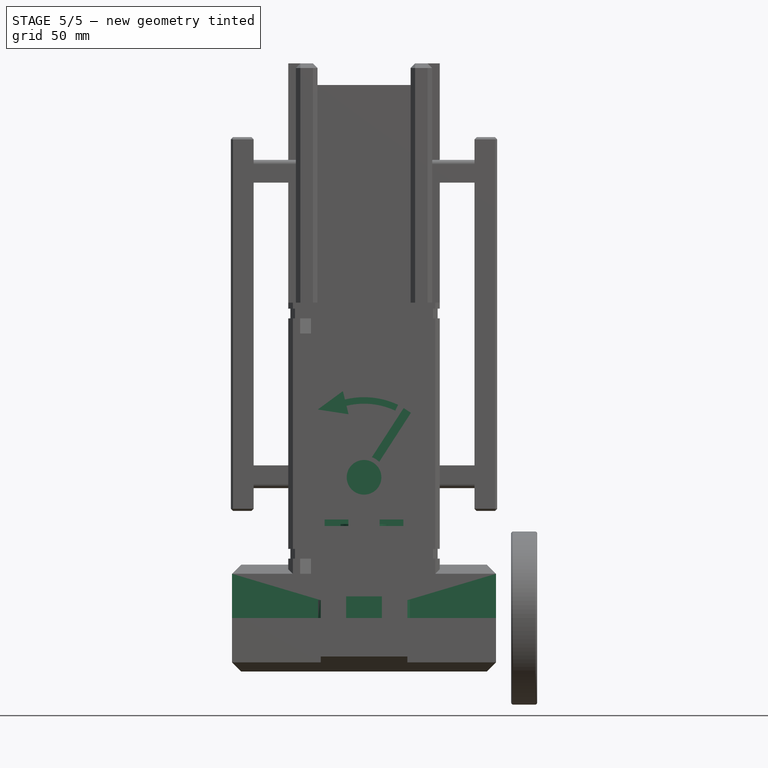
[diagram: stage 5 of 5 — front view after this stage's code; geometry added in this stage tinted green]
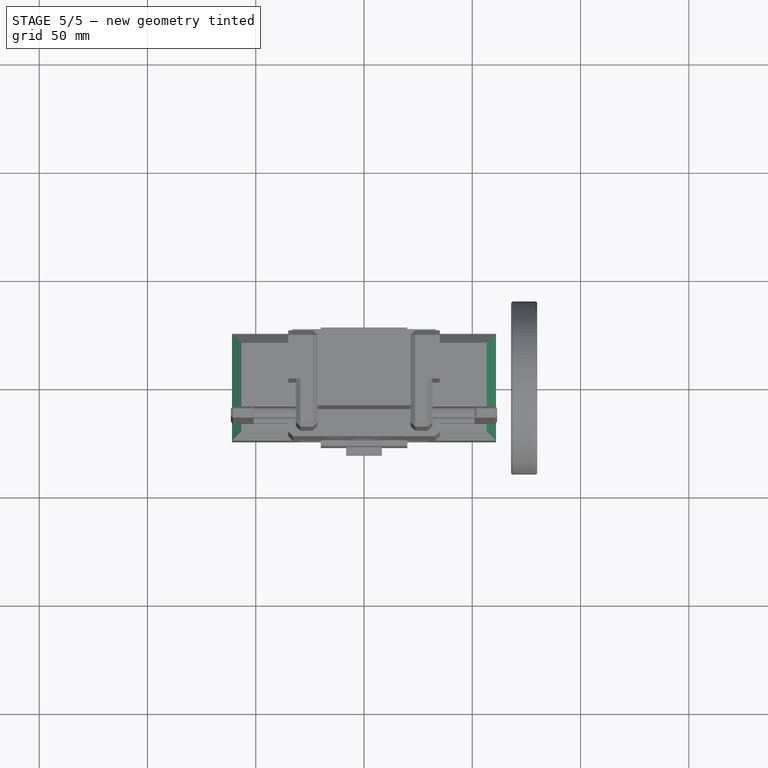
[diagram: stage 5 of 5 — top view after this stage's code; geometry added in this stage tinted green]
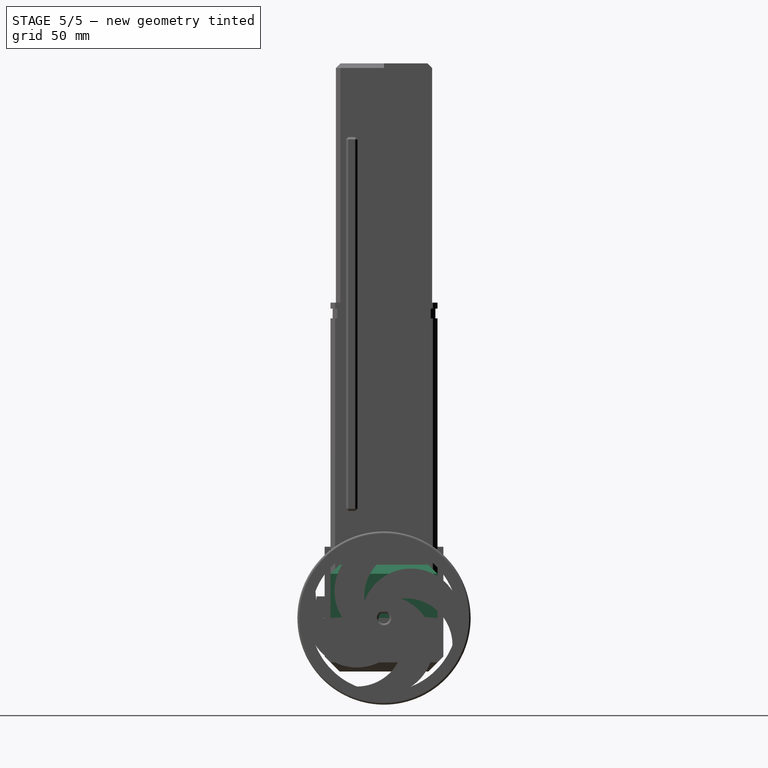
[diagram: stage 5 of 5 — right view after this stage's code; geometry added in this stage tinted green]
FEATURE [Spreadsheet::Sheet] Spreadsheet  label="Dem"
  cells = A1=X; B1(X)==42.4mm; C1=derivatives:; F1=board dem:; G1=boardX; H1(boardX)==50.8mm; I1=case dem:; J1=grooveDepth; K1(grooveDepth)==2mm; L1=battery dem:; M1=batX; N1(batX)==63mm; A2=Y; B2(Y)==42.4mm; D2=housingX; E2(housingX)==X + 2 * caseThinkness; G2=boardY; H2(boardY)==93.98mm; J2=spacing; K2(spacing)==10mm; M2=batY; N2(batY)==100.5mm; A3=Z; B3(Z)==37.45mm; D3=housingY; E3(housingY)==Y + 2 * caseThinkness; G3=boardZ; H3(boardZ)==1.5mm; J3=caseWidth; K3(caseWidth)==max(batX; boardX) + 2 * caseThinkness; M3=batZ; N3(batZ)==24.5mm; A4=Indent; B4(Indent)==4.25mm; D4=boardPos; E4(boardPos)==housingY / 2 + spacing + boardY / 2 + heatSpace; G4=holeOffset; H4(holeOffset)==3.175mm; J4=grooveWidth; K4(grooveWidth)==4.5mm; M4=strutWidth; N4(strutWidth)==10mm; A5=RimDiameter; B5(Rim)==22mm; D5=batPos; E5(batPos)==housingY / 2 + 2 * spacing + boardY + batY / 2 + caseThinkness * 2; G5=holeWidth; H5(holeWidth)==3.8mm; J5=springThickness; K5(springThickness)==2.7mm; A6=AxleDiameter; B6(Axle)==5.09mm; G6=heatSpace; H6(heatSpace)==3.5mm; J6=cordWrapWidth; K6(cordWrapWidth)==151.6mm; A7=plugX; B7(plugX)==16.5mm; G7=pieceX; H7(pieceX)==boardX; J7=cordWrapZ; K7(cordWrapZ)==caseThinkness * 1.5; A8=plugY; B8(plugY)==10mm; G8=pieceY; H8(pieceY)==55.6mm; A9=stepperOffset; B9(stOffset)==40mm; G9=pieceZ; H9(pieceZ)==19mm; A10=caseThickness; B10(caseThinkness)==3.5mm; G10=cutOff; H10(cutOff)==25.68mm; A11=wheelIndent; B11(wheelIndent)==0.45mm; G11=cutY; H11(cutY)==15mm; A12=wheelRad; B12(wheelRad)==40mm; G12=cutIndent; H12(cutIndent)==5.3mm; A13=wheelThickness; B13(wheelThickness)==12mm; G13=boardPadding; H13(boardPadding)==3.5mm; G14=powerRad; H14(powerRad)==5.5mm; G15=powerX; H15(powerX)==6.5mm; G16=powerY; H16(powerY)==30.48mm; G17=uploadWidth; H17(uploadWidth)==12mm; G18=uploadHight; H18(uploadHight)==7mm; G19=uploadX; H19(uploadX)==13.86mm; G20=uploadY; H20(uploadY)==50.8mm; G21=stepWidth; H21(stepWidth)==11mm; G22=stepHight; H22(stepHight)==3mm; G23=stepX; H23(stepX)==12.7mm; G24==stepY; H24(stepY)==5.8mm
FEATURE [Sketcher::SketchObject] Sketch
  MapMode = 5
  Support = -> [XY_Plane001]
  expr: Constraints[22] = Dem.X / 2
  expr: Constraints[14] = Dem.X - 2 * Dem.Indent
  expr: Constraints[17] = Dem.Indent
  expr: Constraints[21] = Dem.Indent
  expr: Constraints[18] = Dem.Indent
  expr: Constraints[23] = Dem.Y / 2
  expr: Constraints[19] = Dem.Indent
  expr: Constraints[20] = Dem.Indent
  expr: Constraints[15] = Dem.X - 2 * Dem.Indent
  expr: Constraints[16] = Dem.Indent
  expr: Constraints[13] = Dem.Y - 2 * Dem.Indent
  expr: Constraints[12] = Dem.Y - 2 * Dem.Indent
  sketch-geometry (8):
    g0: LineSegment StartX=-21.2 StartY=16.95 StartZ=0 EndX=-21.2 EndY=-16.95 EndZ=0
    g1: LineSegment StartX=-21.2 StartY=-16.95 StartZ=0 EndX=-16.95 EndY=-21.2 EndZ=0
    g2: LineSegment StartX=-16.95 StartY=-21.2 StartZ=0 EndX=16.95 EndY=-21.2 EndZ=0
    g3: LineSegment StartX=16.95 StartY=-21.2 StartZ=0 EndX=21.2 EndY=-16.95 EndZ=0
    g4: LineSegment StartX=21.2 StartY=-16.95 StartZ=0 EndX=21.2 EndY=16.95 EndZ=0
    g5: LineSegment StartX=21.2 StartY=16.95 StartZ=0 EndX=16.95 EndY=21.2 EndZ=0
    g6: LineSegment StartX=16.95 StartY=21.2 StartZ=0 EndX=-16.95 EndY=21.2 EndZ=0
    g7: LineSegment StartX=-16.95 StartY=21.2 StartZ=0 EndX=-21.2 EndY=16.95 EndZ=0
  constraints (24):
    c: Coincident(g0,g1)
    c: Coincident(g1,g2)
    c: Coincident(g2,g3)
    c: Coincident(g3,g4)
    c: Coincident(g4,g5)
    c: Coincident(g5,g6)
    c: Coincident(g6,g7)
    c: Coincident(g7,g0)
    c: Horizontal(g6)
    c: Horizontal(g2)
    c: Vertical(g0)
    c: Vertical(g4)
    c: DistanceY(g0,g0) = 33.9
    c: DistanceY(g3,g4) = 33.9
    c: DistanceX(g6,g5) = 33.9
    c: DistanceX(g1,g2) = 33.9
    c: DistanceX(g0,g6) = 4.25
    c: DistanceX(g5,g4) = 4.25
    c: DistanceY(g4,g5) = 4.25
    c: DistanceX(g2,g3) = 4.25
    c: DistanceY(g2,g3) = 4.25
    c: DistanceY(g0,g6) = 4.25
    c: DistanceX(g0,g-1) = 21.2
    c: DistanceY(g1,g-1) = 21.2
FEATURE [PartDesign::Pad] Pad
  Length = 37.45
  Length2 = 100
  Profile = -> Sketch
  Type = 0
  expr: Length = Dem.Z
FEATURE [Sketcher::SketchObject] Sketch001
  MapMode = 5
  Placement = pos=(0,-21.2,0) rot=(1,0,0;1.5708rad)
  Support = -> [Pad]
  expr: Constraints[10] = Dem.plugX / 2
  expr: Constraints[9] = Dem.plugX
  expr: Constraints[8] = Dem.plugY
  sketch-geometry (4):
    g0: LineSegment StartX=-8.25 StartY=0 StartZ=0 EndX=8.25 EndY=0 EndZ=0
    g1: LineSegment StartX=8.25 StartY=0 StartZ=0 EndX=8.25 EndY=10 EndZ=0
    g2: LineSegment StartX=8.25 StartY=10 StartZ=0 EndX=-8.25 EndY=10 EndZ=0
    g3: LineSegment StartX=-8.25 StartY=10 StartZ=0 EndX=-8.25 EndY=0 EndZ=0
  constraints (12):
    c: Coincident(g0,g1)
    c: Coincident(g1,g2)
    c: Coincident(g2,g3)
    c: Coincident(g3,g0)
    c: Horizontal(g0)
    c: Horizontal(g2)
    c: Vertical(g1)
    c: Vertical(g3)
    c: DistanceY(g0,g1) = 10
    c: DistanceX(g0,g0) = 16.5
    c: DistanceX(g0,g-1) = 8.25
    c: DistanceY(g-1,g0) = 0
FEATURE [PartDesign::Pad] Pad001
  BaseFeature = -> Pad
  Length = 10
  Length2 = 100
  Profile = -> Sketch001
  Type = 0
FEATURE [Sketcher::SketchObject] Sketch002
  MapMode = 5
  Placement = pos=(0,0,37.45) rot=(0,0,1;0rad)
  Support = -> [Pad001]
  expr: Constraints[1] = Dem.Rim / 2
  sketch-geometry (1):
    g0: Circle CenterX=0 CenterY=0 CenterZ=0 NormalX=0 NormalY=0 NormalZ=1 AngleXU=0 Radius=11
  constraints (2):
    c: Coincident(g0,g-1)
    c: Radius(g0) = 11
FEATURE [PartDesign::Pad] Pad002
  BaseFeature = -> Pad001
  Length = 6
  Length2 = 100
  Profile = -> Sketch002
  Type = 0
FEATURE [Sketcher::SketchObject] Sketch003
  MapMode = 5
  Placement = pos=(0,0,43.45) rot=(0,0,1;0rad)
  Support = -> [Pad002]
  expr: Constraints[1] = Dem.Axle / 2
  sketch-geometry (1):
    g0: Circle CenterX=0 CenterY=0 CenterZ=0 NormalX=0 NormalY=0 NormalZ=1 AngleXU=0 Radius=2.545
  constraints (2):
    c: Coincident(g0,g-1)
    c: Radius(g0) = 2.545
FEATURE [PartDesign::Pad] Pad003
  BaseFeature = -> Pad002
  Length = 20
  Length2 = 100
  Profile = -> Sketch003
  Type = 0
FEATURE [PartDesign::Body] Body  label="Motor"
  Group = -> [Sketch,Pad,Sketch001,Pad001,Sketch002,Pad002,Sketch003,Pad003]
  Origin = -> Origin001
  Placement = pos=(-20,0,0) rot=(0,-1,0;1.5708rad)
  Tip = -> Pad003
  expr: Placement.Base.x = -Dem.stOffset / 2
FEATURE [App::Part] Part  label="StepperMotor1"
  Group = -> [Body]
  Origin = -> Origin
FEATURE [Sketcher::SketchObject] Sketch005
  MapMode = 5
  Support = -> [XY_Plane003]
  expr: Constraints[22] = Dem.X / 2
  expr: Constraints[14] = Dem.X - 2 * Dem.Indent
  expr: Constraints[17] = Dem.Indent
  expr: Constraints[21] = Dem.Indent
  expr: Constraints[18] = Dem.Indent
  expr: Constraints[23] = Dem.Y / 2
  expr: Constraints[19] = Dem.Indent
  expr: Constraints[20] = Dem.Indent
  expr: Constraints[15] = Dem.X - 2 * Dem.Indent
  expr: Constraints[16] = Dem.Indent
  expr: Constraints[13] = Dem.Y - 2 * Dem.Indent
  expr: Constraints[12] = Dem.Y - 2 * Dem.Indent
  sketch-geometry (8):
    g0: LineSegment StartX=-21.2 StartY=16.95 StartZ=0 EndX=-21.2 EndY=-16.95 EndZ=0
    g1: LineSegment StartX=-21.2 StartY=-16.95 StartZ=0 EndX=-16.95 EndY=-21.2 EndZ=0
    g2: LineSegment StartX=-16.95 StartY=-21.2 StartZ=0 EndX=16.95 EndY=-21.2 EndZ=0
    g3: LineSegment StartX=16.95 StartY=-21.2 StartZ=0 EndX=21.2 EndY=-16.95 EndZ=0
    g4: LineSegment StartX=21.2 StartY=-16.95 StartZ=0 EndX=21.2 EndY=16.95 EndZ=0
    g5: LineSegment StartX=21.2 StartY=16.95 StartZ=0 EndX=16.95 EndY=21.2 EndZ=0
    g6: LineSegment StartX=16.95 StartY=21.2 StartZ=0 EndX=-16.95 EndY=21.2 EndZ=0
    g7: LineSegment StartX=-16.95 StartY=21.2 StartZ=0 EndX=-21.2 EndY=16.95 EndZ=0
  constraints (24):
    c: Coincident(g0,g1)
    c: Coincident(g1,g2)
    c: Coincident(g2,g3)
    c: Coincident(g3,g4)
    c: Coincident(g4,g5)
    c: Coincident(g5,g6)
    c: Coincident(g6,g7)
    c: Coincident(g7,g0)
    c: Horizontal(g6)
    c: Horizontal(g2)
    c: Vertical(g0)
    c: Vertical(g4)
    c: DistanceY(g0,g0) = 33.9
    c: DistanceY(g3,g4) = 33.9
    c: DistanceX(g6,g5) = 33.9
    c: DistanceX(g1,g2) = 33.9
    c: DistanceX(g0,g6) = 4.25
    c: DistanceX(g5,g4) = 4.25
    c: DistanceY(g4,g5) = 4.25
    c: DistanceX(g2,g3) = 4.25
    c: DistanceY(g2,g3) = 4.25
    c: DistanceY(g0,g6) = 4.25
    c: DistanceX(g0,g-1) = 21.2
    c: DistanceY(g1,g-1) = 21.2
FEATURE [PartDesign::Pad] Pad007
  Length = 37.45
  Length2 = 100
  Profile = -> Sketch005
  Type = 0
  expr: Length = Dem.Z
FEATURE [Sketcher::SketchObject] Sketch006
  MapMode = 5
  Placement = pos=(0,-21.2,0) rot=(1,0,0;1.5708rad)
  Support = -> [Pad007]
  expr: Constraints[10] = Dem.plugX / 2
  expr: Constraints[9] = Dem.plugX
  expr: Constraints[8] = Dem.plugY
  sketch-geometry (4):
    g0: LineSegment StartX=-8.25 StartY=0 StartZ=0 EndX=8.25 EndY=0 EndZ=0
    g1: LineSegment StartX=8.25 StartY=0 StartZ=0 EndX=8.25 EndY=10 EndZ=0
    g2: LineSegment StartX=8.25 StartY=10 StartZ=0 EndX=-8.25 EndY=10 EndZ=0
    g3: LineSegment StartX=-8.25 StartY=10 StartZ=0 EndX=-8.25 EndY=0 EndZ=0
  constraints (12):
    c: Coincident(g0,g1)
    c: Coincident(g1,g2)
    c: Coincident(g2,g3)
    c: Coincident(g3,g0)
    c: Horizontal(g0)
    c: Horizontal(g2)
    c: Vertical(g1)
    c: Vertical(g3)
    c: DistanceY(g0,g1) = 10
    c: DistanceX(g0,g0) = 16.5
    c: DistanceX(g0,g-1) = 8.25
    c: DistanceY(g-1,g0) = 0
FEATURE [PartDesign::Pad] Pad006
  BaseFeature = -> Pad007
  Length = 10
  Length2 = 100
  Profile = -> Sketch006
  Type = 0
FEATURE [Sketcher::SketchObject] Sketch007
  MapMode = 5
  Placement = pos=(0,0,37.45) rot=(0,0,1;0rad)
  Support = -> [Pad006]
  expr: Constraints[1] = Dem.Rim / 2
  sketch-geometry (1):
    g0: Circle CenterX=0 CenterY=0 CenterZ=0 NormalX=0 NormalY=0 NormalZ=1 AngleXU=0 Radius=11
  constraints (2):
    c: Coincident(g0,g-1)
    c: Radius(g0) = 11
FEATURE [PartDesign::Pad] Pad004
  BaseFeature = -> Pad006
  Length = 6
  Length2 = 100
  Profile = -> Sketch007
  Type = 0
FEATURE [Sketcher::SketchObject] Sketch004
  MapMode = 5
  Placement = pos=(0,0,43.45) rot=(0,0,1;0rad)
  Support = -> [Pad004]
  expr: Constraints[1] = Dem.Axle / 2
  sketch-geometry (1):
    g0: Circle CenterX=0 CenterY=0 CenterZ=0 NormalX=0 NormalY=0 NormalZ=1 AngleXU=0 Radius=2.545
  constraints (2):
    c: Coincident(g0,g-1)
    c: Radius(g0) = 2.545
FEATURE [PartDesign::Pad] Pad005
  BaseFeature = -> Pad004
  Length = 20
  Length2 = 100
  Profile = -> Sketch004
  Type = 0
FEATURE [Sketcher::SketchObject] Sketch009
  AttachmentOffset = pos=(0,0,-60.95) rot=(0,0,1;0rad)
  MapMode = 5
  Placement = pos=(-60.95,1.35e-14,-1.35e-14) rot=(0.57735,0.57735,0.57735;2.0944rad)
  Support = -> [YZ_Plane007]
  expr: AttachmentOffset.Base.z = -Dem.stOffset / 2 - Dem.Z - Dem.caseThinkness
  expr: Constraints[16] = Dem.Y / 2 + Dem.caseThinkness
  expr: Constraints[17] = Dem.Indent
  expr: Constraints[14] = Dem.X / 2 + Dem.caseThinkness
  expr: Constraints[13] = Dem.X + 2 * Dem.caseThinkness
  sketch-geometry (6):
    g0: LineSegment StartX=-24.7 StartY=0 StartZ=0 EndX=-24.7 EndY=20.45 EndZ=0
    g1: LineSegment StartX=-24.7 StartY=20.45 StartZ=0 EndX=-20.45 EndY=24.7 EndZ=0
    g2: LineSegment StartX=-20.45 StartY=24.7 StartZ=0 EndX=20.45 EndY=24.7 EndZ=0
    g3: LineSegment StartX=20.45 StartY=24.7 StartZ=0 EndX=24.7 EndY=20.45 EndZ=0
    g4: LineSegment StartX=24.7 StartY=20.45 StartZ=0 EndX=24.7 EndY=0 EndZ=0
    g5: LineSegment StartX=24.7 StartY=0 StartZ=0 EndX=-24.7 EndY=0 EndZ=0
  constraints (18):
    c: Coincident(g0,g1)
    c: Coincident(g1,g2)
    c: Coincident(g2,g3)
    c: Coincident(g3,g4)
    c: Coincident(g4,g5)
    c: Coincident(g5,g0)
    c: Horizontal(g2)
    c: Horizontal(g5)
    c: Vertical(g0)
    c: Vertical(g4)
    c: Perpendicular(g3,g1)
    c: Equal(g1,g3)
    c: Angle(g1,g2) = 2.35619
    c: DistanceX(g0,g4) = 49.4
    c: DistanceX(g0,g-1) = 24.7
    c: DistanceY(g-1,g0) = 0
    c: DistanceY(g-1,g1) = 24.7
    c: DistanceX(g0,g1) = 4.25
FEATURE [PartDesign::Pad] Pad009
  Length = 121.9
  Length2 = 100
  Placement = pos=(0,0,0) rot=(0.57735,0.57735,0.57735;2.0944rad)
  Profile = -> Sketch009
  Type = 0
  expr: Length = Dem.stOffset + 2 * Dem.Z + 2 * Dem.caseThinkness
FEATURE [PartDesign::Boolean] Boolean001
  BaseFeature = -> Pad009
  Type = 1
FEATURE [PartDesign::Chamfer] Chamfer001
  Base = -> Boolean001 [Edge19,Edge28]
  BaseFeature = -> Boolean001
  Size = 4.25
  expr: Size = Dem.Indent
FEATURE [Sketcher::SketchObject] Sketch011
  MapMode = 5
  Placement = pos=(0,0,3.4e-15) rot=(1,0,0;3.14159rad)
  Support = -> [Chamfer001]
  expr: Constraints[11] = Dem.X / 2
  expr: Constraints[10] = Dem.stOffset / 2 - Dem.caseThinkness
  expr: Constraints[9] = Dem.X
  expr: Constraints[8] = Dem.stOffset - 2 * Dem.caseThinkness
  sketch-geometry (4):
    g0: LineSegment StartX=-16.5 StartY=21.2 StartZ=0 EndX=16.5 EndY=21.2 EndZ=0
    g1: LineSegment StartX=16.5 StartY=21.2 StartZ=0 EndX=16.5 EndY=-21.2 EndZ=0
    g2: LineSegment StartX=16.5 StartY=-21.2 StartZ=0 EndX=-16.5 EndY=-21.2 EndZ=0
    g3: LineSegment StartX=-16.5 StartY=-21.2 StartZ=0 EndX=-16.5 EndY=21.2 EndZ=0
  constraints (12):
    c: Coincident(g0,g1)
    c: Coincident(g1,g2)
    c: Coincident(g2,g3)
    c: Coincident(g3,g0)
    c: Horizontal(g0)
    c: Horizontal(g2)
    c: Vertical(g1)
    c: Vertical(g3)
    c: DistanceX(g0,g0) = 33
    c: DistanceY(g2,g0) = 42.4
    c: DistanceX(g0,g-1) = 16.5
    c: DistanceY(g-1,g0) = 21.2
FEATURE [PartDesign::Pocket] Pocket001
  BaseFeature = -> Chamfer001
  Length = 21.2
  Length2 = 100
  Profile = -> Sketch011
  Type = 0
  expr: Length = Dem.Y / 2
FEATURE [PartDesign::Chamfer] Chamfer003
  Base = -> Pocket001 [Edge97,Edge100]
  BaseFeature = -> Pocket001
  Size = 4.25
  expr: Size = Dem.Indent
FEATURE [Sketcher::SketchObject] Sketch021
  MapMode = 5
  Placement = pos=(0,0,0) rot=(1,0,0;1.5708rad)
  Support = -> [XZ_Plane017]
  expr: Constraints[21] = Dem.holeOffset
  expr: Constraints[23] = Dem.boardPos - Dem.boardY / 2
  expr: Constraints[19] = Dem.boardX - 2 * Dem.holeOffset
  expr: Constraints[18] = Dem.boardY - 2 * Dem.holeOffset
  expr: Constraints[20] = Dem.holeOffset
  expr: Constraints[15] = Dem.holeWidth / 2
  expr: Constraints[22] = Dem.boardX / 2
  expr: Constraints[17] = Dem.holeWidth / 2
  expr: Constraints[14] = Dem.holeWidth / 2
  expr: Constraints[9] = Dem.boardY
  expr: Constraints[16] = Dem.holeWidth / 2
  expr: Constraints[8] = Dem.boardX
  sketch-geometry (8):
    g0: LineSegment StartX=-25.4 StartY=132.18 StartZ=0 EndX=25.4 EndY=132.18 EndZ=0
    g1: LineSegment StartX=25.4 StartY=132.18 StartZ=0 EndX=25.4 EndY=38.2 EndZ=0
    g2: LineSegment StartX=25.4 StartY=38.2 StartZ=0 EndX=-25.4 EndY=38.2 EndZ=0
    g3: LineSegment StartX=-25.4 StartY=38.2 StartZ=0 EndX=-25.4 EndY=132.18 EndZ=0
    g4: Circle CenterX=-22.225 CenterY=129.005 CenterZ=0 NormalX=0 NormalY=0 NormalZ=1 AngleXU=0 Radius=1.9
    g5: Circle CenterX=22.225 CenterY=129.005 CenterZ=0 NormalX=0 NormalY=0 NormalZ=1 AngleXU=0 Radius=1.9
    g6: Circle CenterX=22.225 CenterY=41.375 CenterZ=0 NormalX=0 NormalY=0 NormalZ=1 AngleXU=0 Radius=1.9
    g7: Circle CenterX=-22.225 CenterY=41.375 CenterZ=0 NormalX=0 NormalY=0 NormalZ=1 AngleXU=0 Radius=1.9
  constraints (24):
    c: Coincident(g0,g1)
    c: Coincident(g1,g2)
    c: Coincident(g2,g3)
    c: Coincident(g3,g0)
    c: Horizontal(g0)
    c: Horizontal(g2)
    c: Vertical(g1)
    c: Vertical(g3)
    c: DistanceX(g0,g0) = 50.8
    c: DistanceY(g1,g0) = 93.98
    c: DistanceX(g5,g6) = 0
    c: DistanceX(g4,g7) = 0
    c: DistanceY(g4,g5) = 0
    c: DistanceY(g6,g7) = 0
    c: Radius(g5) = 1.9
    c: Radius(g4) = 1.9
    c: Radius(g7) = 1.9
    c: Radius(g6) = 1.9
    c: DistanceY(g6,g5) = 87.63
    c: DistanceX(g4,g5) = 44.45
    c: DistanceX(g2,g7) = 3.175
    c: DistanceY(g2,g7) = 3.175
    c: DistanceX(g2,g-1) = 25.4
    c: DistanceY(g-1,g2) = 38.2
FEATURE [PartDesign::Pad] Pad018
  Length = 1.5
  Length2 = 100
  Placement = pos=(0,0,0) rot=(1,0,0;1.5708rad)
  Profile = -> Sketch021
  Type = 0
  expr: Length = Dem.boardZ
FEATURE [Sketcher::SketchObject] Sketch022
  MapMode = 5
  Placement = pos=(0,-1.5,0) rot=(1,0,0;1.5708rad)
  Support = -> [Pad018]
  expr: Constraints[11] = Dem.boardX / 2
  expr: Constraints[10] = Dem.boardPos + Dem.boardY / 2 - Dem.cutOff
  expr: Constraints[9] = Dem.pieceY
  expr: Constraints[8] = Dem.pieceX
  sketch-geometry (4):
    g0: LineSegment StartX=-25.4 StartY=106.5 StartZ=0 EndX=25.4 EndY=106.5 EndZ=0
    g1: LineSegment StartX=25.4 StartY=106.5 StartZ=0 EndX=25.4 EndY=50.9 EndZ=0
    g2: LineSegment StartX=25.4 StartY=50.9 StartZ=0 EndX=-25.4 EndY=50.9 EndZ=0
    g3: LineSegment StartX=-25.4 StartY=50.9 StartZ=0 EndX=-25.4 EndY=106.5 EndZ=0
  constraints (12):
    c: Coincident(g0,g1)
    c: Coincident(g1,g2)
    c: Coincident(g2,g3)
    c: Coincident(g3,g0)
    c: Horizontal(g0)
    c: Horizontal(g2)
    c: Vertical(g1)
    c: Vertical(g3)
    c: DistanceX(g0,g0) = 50.8
    c: DistanceY(g1,g0) = 55.6
    c: DistanceY(g-1,g0) = 106.5
    c: DistanceX(g2,g-1) = 25.4
FEATURE [PartDesign::Pad] Pad019
  BaseFeature = -> Pad018
  Length = 19
  Length2 = 100
  Placement = pos=(0,0,0) rot=(1,0,0;1.5708rad)
  Profile = -> Sketch022
  Type = 0
  expr: Length = Dem.pieceZ
FEATURE [Sketcher::SketchObject] Sketch023
  MapMode = 5
  Placement = pos=(0,-2e-16,0) rot=(-1,0,0;1.5708rad)
  Support = -> [Pad019]
  expr: Constraints[11] = Dem.boardPos + Dem.boardY / 2 - Dem.cutIndent
  expr: Constraints[10] = Dem.cutY
  expr: Constraints[9] = Dem.boardX / 2
  expr: Constraints[8] = Dem.boardX
  sketch-geometry (4):
    g0: LineSegment StartX=-25.4 StartY=-111.88 StartZ=0 EndX=25.4 EndY=-111.88 EndZ=0
    g1: LineSegment StartX=25.4 StartY=-111.88 StartZ=0 EndX=25.4 EndY=-126.88 EndZ=0
    g2: LineSegment StartX=25.4 StartY=-126.88 StartZ=0 EndX=-25.4 EndY=-126.88 EndZ=0
    g3: LineSegment StartX=-25.4 StartY=-126.88 StartZ=0 EndX=-25.4 EndY=-111.88 EndZ=0
  constraints (12):
    c: Coincident(g0,g1)
    c: Coincident(g1,g2)
    c: Coincident(g2,g3)
    c: Coincident(g3,g0)
    c: Horizontal(g0)
    c: Horizontal(g2)
    c: Vertical(g1)
    c: Vertical(g3)
    c: DistanceX(g2,g1) = 50.8
    c: DistanceX(g0,g-1) = 25.4
    c: DistanceY(g1,g0) = 15
    c: DistanceY(g1,g-1) = 126.88
FEATURE [PartDesign::Pad] Pad020
  BaseFeature = -> Pad019
  Length = 10
  Length2 = 100
  Placement = pos=(0,0,0) rot=(1,0,0;1.5708rad)
  Profile = -> Sketch023
  Type = 0
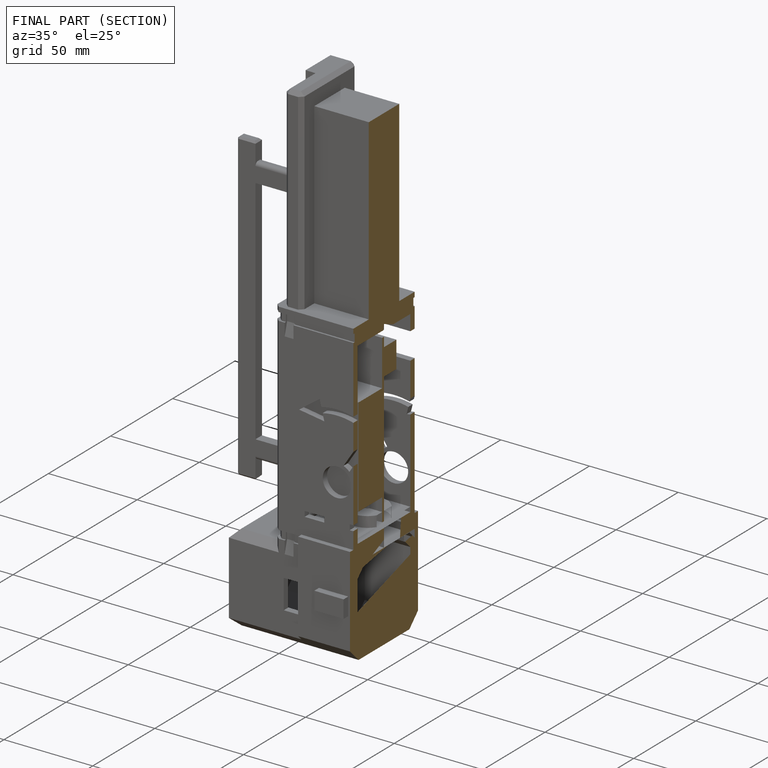
[diagram: finished part — half-section view (interior)]
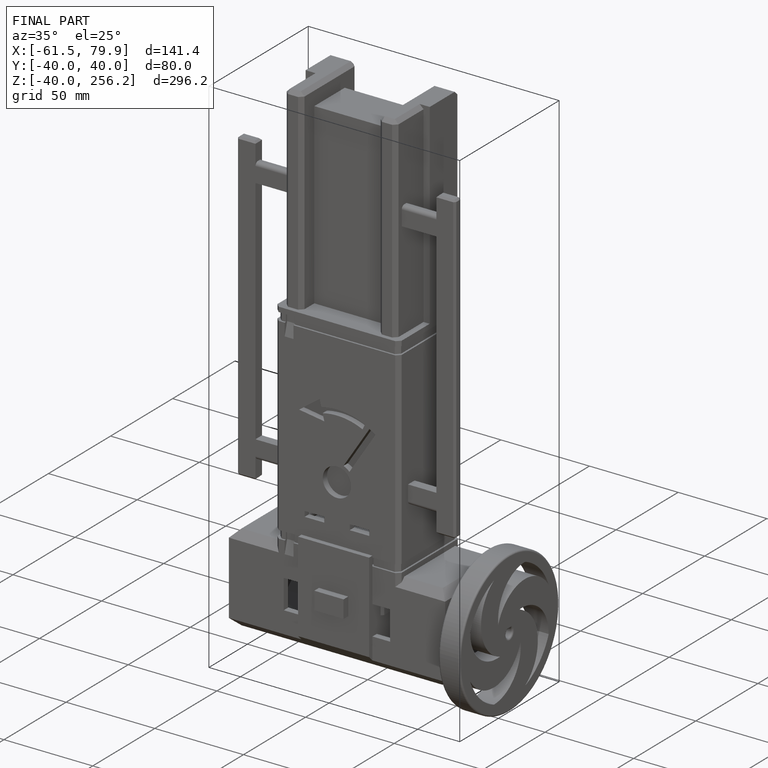
[diagram: finished part — iso view with bounding-box wireframe]
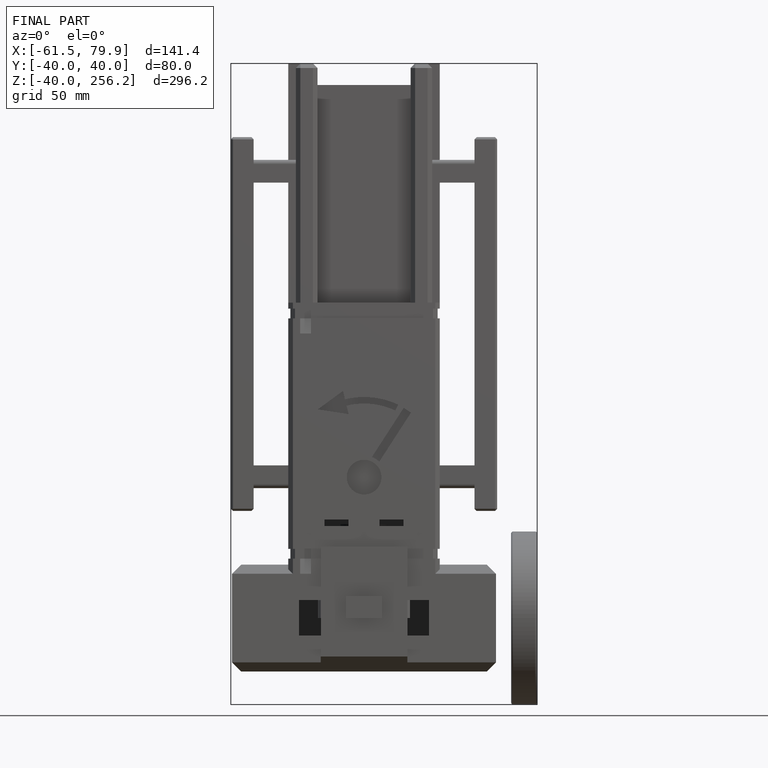
[diagram: finished part — front view with bounding-box wireframe]
